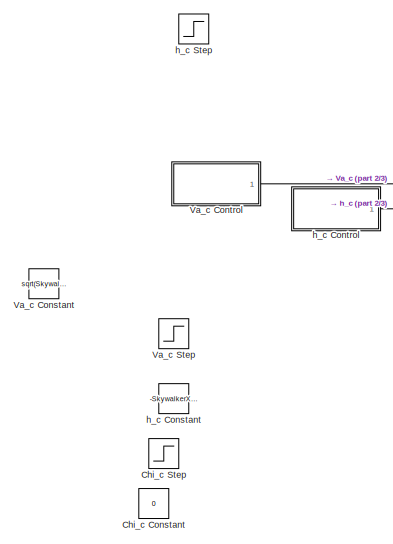
[diagram: root canvas - part 1/3, middle left region]
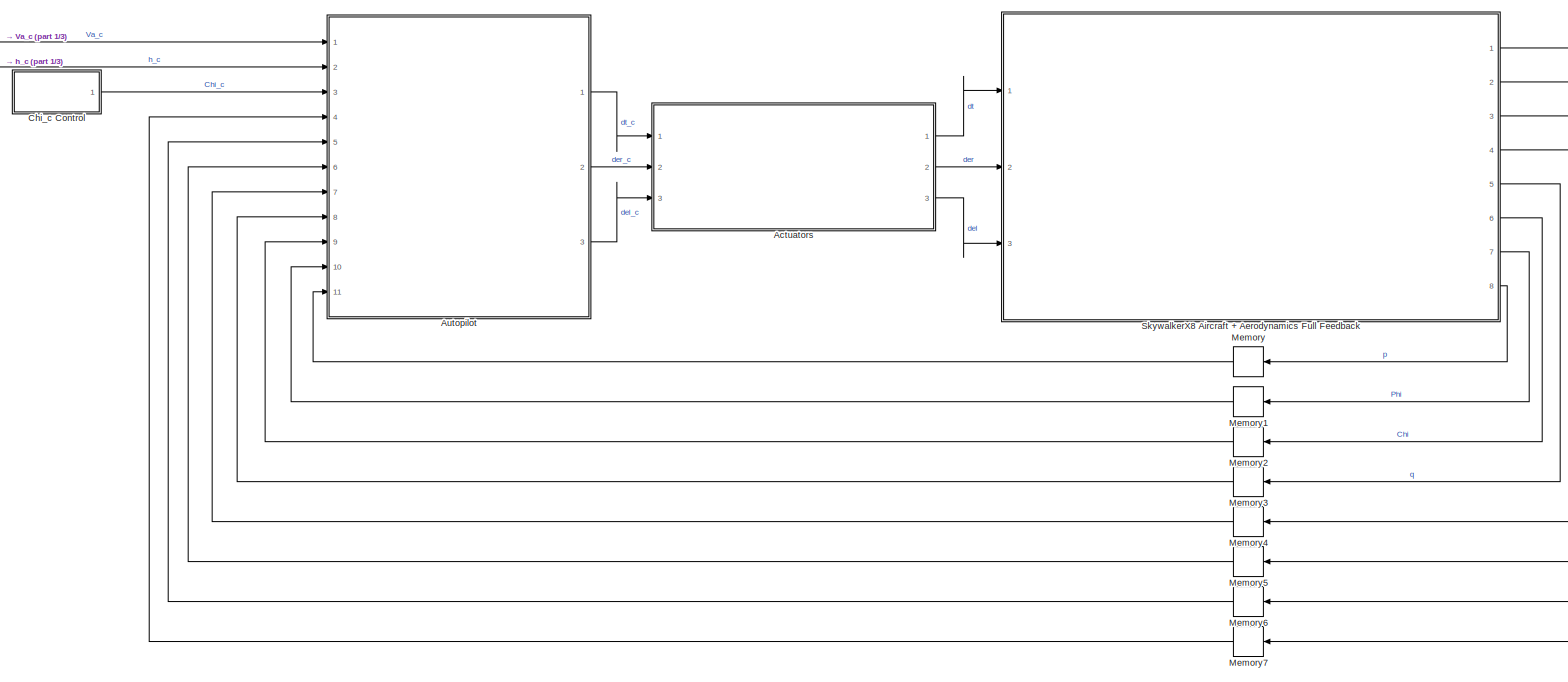
[diagram: root canvas - part 2/3, most of the canvas]
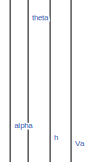
[diagram: root canvas - part 3/3, middle right region]
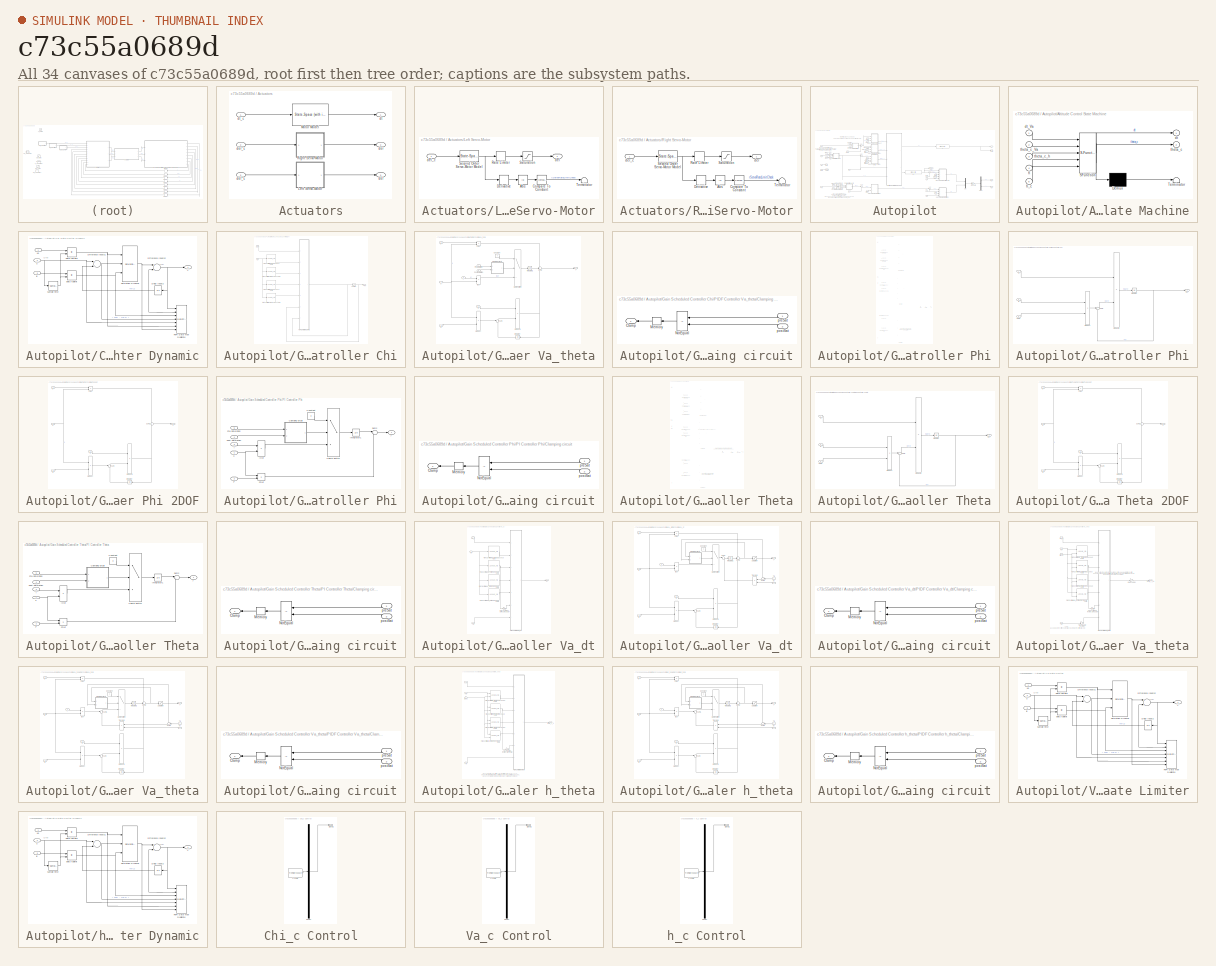
[diagram: thumbnail index - all 34 canvases of the model, root first then tree order]
MODEL slx_c73c55a0689d
KIND model
CONFIG AbsTol = auto
CONFIG EnableMultiTasking = off
CONFIG FixedStep = 0.01
CONFIG MaxStep = auto
CONFIG MinStep = auto
CONFIG RelTol = 1e-3
CONFIG SampleTimeConstraint = Unconstrained
CONFIG Solver = FixedStepAuto
CONFIG SolverName = FixedStepAuto
CONFIG StartTime = 0.0
CONFIG StopTime = 120
BLOCK [SubSystem] Actuators
  Ports = [3, 3]
  RequestExecContextInheritance = off
BLOCK [SubSystem] Actuators/Left Servo-Motor
  Ports = [1, 1]
  RequestExecContextInheritance = off
BLOCK [Abs] Actuators/Left Servo-Motor/Abs
  SaturateOnIntegerOverflow = off
BLOCK [Reference] Actuators/Left Servo-Motor/Compare To Constant  REF=simulink/Logic and Bit
Operations/Compare
To Constant
  Ports = [1, 1]
  SourceBlock = simulink/Logic and Bit\nOperations/Compare\nTo Constant
  SourceProductBaseCode = SL
  SourceProductName = Simulink
  SourceType = Compare To Constant
BLOCK [Derivative] Actuators/Left Servo-Motor/Derivative
BLOCK [RateLimiter] Actuators/Left Servo-Motor/Rate Limiter
  Commented = through
  FallingSlewLimit = -SkywalkerX8.Actuators.Servos.RateLimit
  InitialCondition = SkywalkerX8.InitialConditions.de*0.5 + SkywalkerX8.InitialConditions.da*0.5
  RisingSlewLimit = SkywalkerX8.Actuators.Servos.RateLimit
  SampleTimeMode = inherited
BLOCK [Saturate] Actuators/Left Servo-Motor/Saturation
  InputPortMap = u0
  LowerLimit = SkywalkerX8.Actuators.Servos.LowerSaturation
  Ports = [1, 1]
  UpperLimit = SkywalkerX8.Actuators.Servos.UpperSaturation
BLOCK [Reference] Actuators/Left Servo-Motor/Second Order Servo-Motor Model  REF=simulink_extras/Additional
Linear/State-Space
(with initial outputs)
  Ports = [1, 1]
  SourceBlock = simulink_extras/Additional\nLinear/State-Space\n(with initial outputs)
  SourceProductBaseCode = SL
  SourceProductName = Simulink
  SourceType = State-Space with Initial Outputs
BLOCK [Terminator] Actuators/Left Servo-Motor/Terminator
BLOCK [Outport] Actuators/Left Servo-Motor/del
  IconDisplay = Port number
BLOCK [Inport] Actuators/Left Servo-Motor/del_c
  IconDisplay = Port number
BLOCK [Reference] Actuators/Motor Model  REF=simulink_extras/Additional
Linear/State-Space
(with initial outputs)
  Ports = [1, 1]
  SourceBlock = simulink_extras/Additional\nLinear/State-Space\n(with initial outputs)
  SourceProductBaseCode = SL
  SourceProductName = Simulink
  SourceType = State-Space with Initial Outputs
BLOCK [SubSystem] Actuators/Right Servo-Motor
  Ports = [1, 1]
  RequestExecContextInheritance = off
BLOCK [Abs] Actuators/Right Servo-Motor/Abs
  SaturateOnIntegerOverflow = off
BLOCK [Reference] Actuators/Right Servo-Motor/Compare To Constant  REF=simulink/Logic and Bit
Operations/Compare
To Constant
  Ports = [1, 1]
  SourceBlock = simulink/Logic and Bit\nOperations/Compare\nTo Constant
  SourceProductBaseCode = SL
  SourceProductName = Simulink
  SourceType = Compare To Constant
BLOCK [Derivative] Actuators/Right Servo-Motor/Derivative
BLOCK [RateLimiter] Actuators/Right Servo-Motor/Rate Limiter
  Commented = through
  FallingSlewLimit = -SkywalkerX8.Actuators.Servos.RateLimit
  InitialCondition = SkywalkerX8.InitialConditions.de*0.5 - SkywalkerX8.InitialConditions.da*0.5
  RisingSlewLimit = SkywalkerX8.Actuators.Servos.RateLimit
  SampleTimeMode = inherited
BLOCK [Saturate] Actuators/Right Servo-Motor/Saturation
  InputPortMap = u0
  LowerLimit = SkywalkerX8.Actuators.Servos.LowerSaturation
  Ports = [1, 1]
  UpperLimit = SkywalkerX8.Actuators.Servos.UpperSaturation
BLOCK [Reference] Actuators/Right Servo-Motor/Second Order Servo-Motor Model  REF=simulink_extras/Additional
Linear/State-Space
(with initial outputs)
  Ports = [1, 1]
  SourceBlock = simulink_extras/Additional\nLinear/State-Space\n(with initial outputs)
  SourceProductBaseCode = SL
  SourceProductName = Simulink
  SourceType = State-Space with Initial Outputs
BLOCK [Terminator] Actuators/Right Servo-Motor/Terminator
BLOCK [Outport] Actuators/Right Servo-Motor/der
  IconDisplay = Port number
BLOCK [Inport] Actuators/Right Servo-Motor/der_c
  IconDisplay = Port number
BLOCK [Outport] Actuators/del
  IconDisplay = Port number
  Port = 3
BLOCK [Inport] Actuators/del_c
  IconDisplay = Port number
  Port = 3
BLOCK [Outport] Actuators/der
  IconDisplay = Port number
  Port = 2
BLOCK [Inport] Actuators/der_c
  IconDisplay = Port number
  Port = 2
BLOCK [Outport] Actuators/dt
  IconDisplay = Port number
BLOCK [Inport] Actuators/dt_c
  IconDisplay = Port number
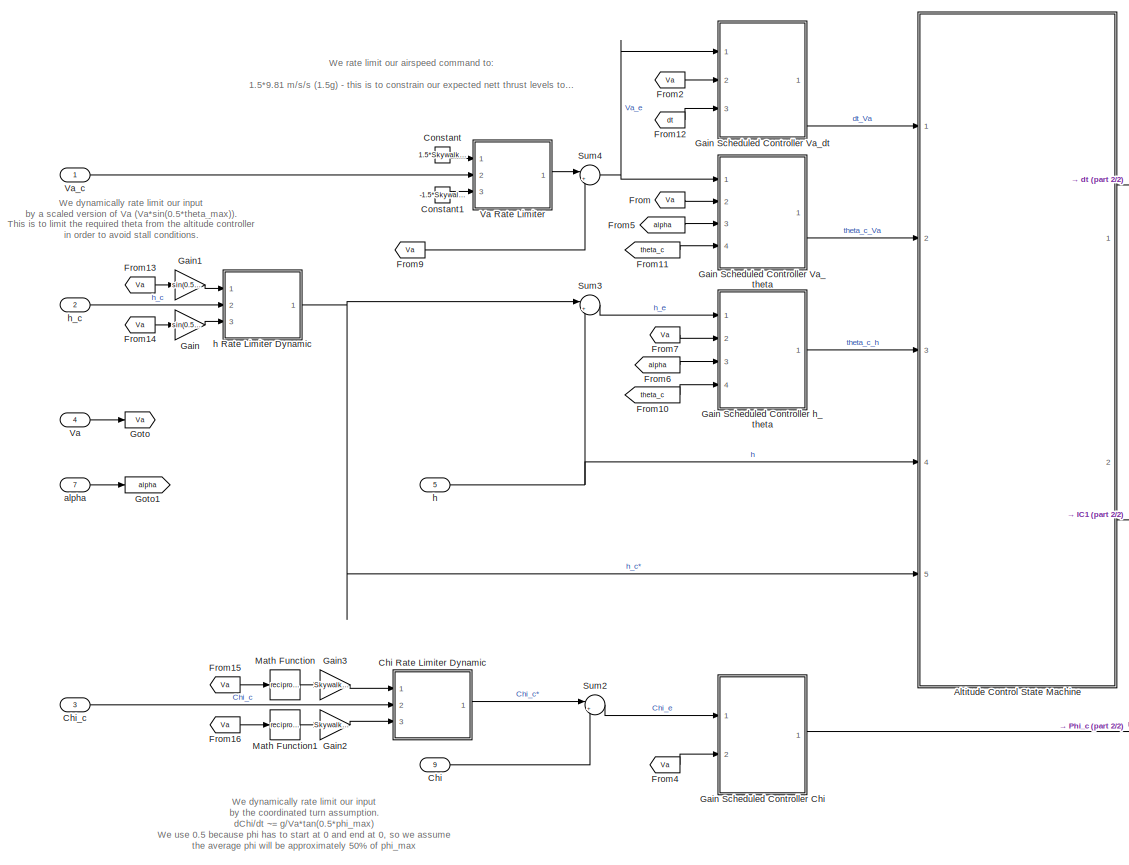
[diagram: Autopilot - part 1/2, left side, full height]
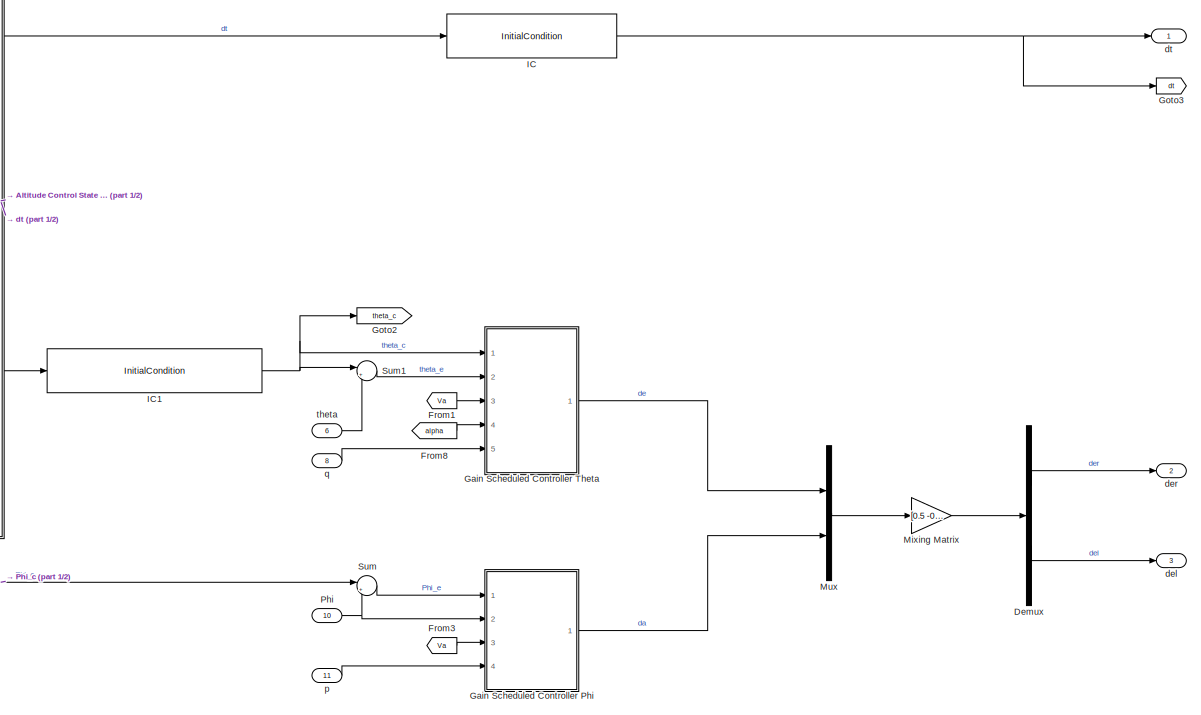
[diagram: Autopilot - part 2/2, right side, full height]
BLOCK [SubSystem] Autopilot
  Ports = [11, 3]
  RequestExecContextInheritance = off
BLOCK [SubSystem] Autopilot/Altitude Control State Machine
  ErrorFcn = Stateflow.Translate.translate
  PermitHierarchicalResolution = ExplicitOnly
  Ports = [5, 2]
  RequestExecContextInheritance = off
  SFBlockType = Chart
  TreatAsAtomicUnit = on
BLOCK [Demux] Autopilot/Altitude Control State Machine/ Demux 
  Outputs = 1
  Ports = [1, 1]
BLOCK [S-Function] Autopilot/Altitude Control State Machine/ SFunction 
  EnableBusSupport = on
  FunctionName = sf_sfun
  Parameters = PreFlightBypass,h_hold,h_takeoff,hyst_frac,theta_c_takeoff
  PortCounts = [5 3]
  Ports = [5, 3]
  SFcnIsStateOwnerBlock = off
  SFunctionDeploymentMode = off
  Tag = Stateflow S-Function SkywalkerX8_Control 3
BLOCK [Terminator] Autopilot/Altitude Control State Machine/ Terminator 
BLOCK [Outport] Autopilot/Altitude Control State Machine/dt
  IconDisplay = Port number
BLOCK [Inport] Autopilot/Altitude Control State Machine/dt_Va
  IconDisplay = Port number
BLOCK [Inport] Autopilot/Altitude Control State Machine/h
  IconDisplay = Port number
  Port = 4
BLOCK [Inport] Autopilot/Altitude Control State Machine/h_c
  IconDisplay = Port number
  Port = 5
BLOCK [Outport] Autopilot/Altitude Control State Machine/theta_c
  IconDisplay = Port number
  Port = 2
BLOCK [Inport] Autopilot/Altitude Control State Machine/theta_c_Va
  IconDisplay = Port number
  Port = 2
BLOCK [Inport] Autopilot/Altitude Control State Machine/theta_c_h
  IconDisplay = Port number
  Port = 3
BLOCK [Inport] Autopilot/Chi
  IconDisplay = Port number
  Port = 9
BLOCK [SubSystem] Autopilot/Chi Rate Limiter Dynamic
  Ports = [3, 1]
  RequestExecContextInheritance = off
BLOCK [UnitDelay] Autopilot/Chi Rate Limiter Dynamic/Delay Input2
  Description = Store in Global RAM
  DisableCoverage = on
  InitialCondition = initOutput
  SampleTime = -1
BLOCK [Sum] Autopilot/Chi Rate Limiter Dynamic/Difference Inputs1
  Description = Add in CPU
  DisableCoverage = on
  InputSameDT = off
  Inputs = +-
  OutDataTypeStr = Inherit: Inherit via back propagation
  Ports = [2, 1]
  SaturateOnIntegerOverflow = off
BLOCK [Sum] Autopilot/Chi Rate Limiter Dynamic/Difference Inputs2
  Description = Add in CPU
  InputSameDT = off
  OutDataTypeStr = Inherit: Inherit via back propagation
  Ports = [2, 1]
  SaturateOnIntegerOverflow = off
BLOCK [DataTypeDuplicate] Autopilot/Chi Rate Limiter Dynamic/FixPt Data Type Duplicate
  DisableCoverage = on
  NumInputPorts = 7
  Ports = [7]
BLOCK [Reference] Autopilot/Chi Rate Limiter Dynamic/Saturation Dynamic  REF=simulink/Discontinuities/Saturation
Dynamic
  Ports = [3, 1]
  SourceBlock = simulink/Discontinuities/Saturation\nDynamic
  SourceProductBaseCode = SL
  SourceProductName = Simulink
  SourceType = Saturation Dynamic
BLOCK [Outport] Autopilot/Chi Rate Limiter Dynamic/Y
  IconDisplay = Port number
  InitialOutput = 0
BLOCK [Product] Autopilot/Chi Rate Limiter Dynamic/delta fall limit
  DisableCoverage = on
  InputSameDT = off
  Inputs = **
  OutDataTypeStr = Inherit: Inherit via back propagation
  Ports = [2, 1]
  RndMeth = Floor
BLOCK [Product] Autopilot/Chi Rate Limiter Dynamic/delta rise limit
  DisableCoverage = on
  InputSameDT = off
  Inputs = **
  OutDataTypeStr = Inherit: Inherit via back propagation
  Ports = [2, 1]
  RndMeth = Floor
BLOCK [Inport] Autopilot/Chi Rate Limiter Dynamic/lo
  IconDisplay = Port number
  Port = 3
BLOCK [SampleTimeMath] Autopilot/Chi Rate Limiter Dynamic/sample time
  DisableCoverage = on
  TsampMathOp = Ts Only
  weightValue = 1
BLOCK [Inport] Autopilot/Chi Rate Limiter Dynamic/u
  IconDisplay = Port number
  Port = 2
BLOCK [Inport] Autopilot/Chi Rate Limiter Dynamic/up
  IconDisplay = Port number
BLOCK [Inport] Autopilot/Chi_c
  IconDisplay = Port number
  Port = 3
BLOCK [Constant] Autopilot/Constant
  Value = 1.5*SkywalkerX8.System.Gravity
BLOCK [Constant] Autopilot/Constant1
  Value = -1.5*SkywalkerX8.System.Gravity
BLOCK [Demux] Autopilot/Demux
  DisplayOption = bar
  Outputs = 2
  Ports = [1, 2]
BLOCK [From] Autopilot/From
  GotoTag = Va
BLOCK [From] Autopilot/From1
  GotoTag = Va
BLOCK [From] Autopilot/From10
  GotoTag = theta_c
BLOCK [From] Autopilot/From11
  GotoTag = theta_c
BLOCK [From] Autopilot/From12
  GotoTag = dt
BLOCK [From] Autopilot/From13
  GotoTag = Va
BLOCK [From] Autopilot/From14
  GotoTag = Va
BLOCK [From] Autopilot/From15
  GotoTag = Va
BLOCK [From] Autopilot/From16
  GotoTag = Va
BLOCK [From] Autopilot/From2
  GotoTag = Va
BLOCK [From] Autopilot/From3
  GotoTag = Va
BLOCK [From] Autopilot/From4
  GotoTag = Va
BLOCK [From] Autopilot/From5
  GotoTag = alpha
BLOCK [From] Autopilot/From6
  GotoTag = alpha
BLOCK [From] Autopilot/From7
  GotoTag = Va
BLOCK [From] Autopilot/From8
  GotoTag = alpha
BLOCK [From] Autopilot/From9
  GotoTag = Va
BLOCK [Gain] Autopilot/Gain
  Gain = sin(0.5*SkywalkerX8.Control.Longitudinal.altController.lowerSaturationThetaC)
  OutDataTypeStr = Inherit: Inherit via internal rule
  ParamDataTypeStr = Inherit: Inherit via internal rule
  SaturateOnIntegerOverflow = off
BLOCK [SubSystem] Autopilot/Gain Scheduled Controller Chi
  Ports = [2, 1]
  RequestExecContextInheritance = off
BLOCK [Inport] Autopilot/Gain Scheduled Controller Chi/Chi_e
  IconDisplay = Port number
BLOCK [Lookup_n-D] Autopilot/Gain Scheduled Controller Chi/PIDF Controller Chi Kd 2D Lookup Table
  BreakpointsForDimension1 = SkywalkerX8.Control.Lateral.SchedulingVariables.VaArray
  BreakpointsForDimension2 = SkywalkerX8.Control.Longitudinal.SchedulingVariables.alphaArray
  InternalRulePriority = Speed
  NumberOfTableDimensions = 1
  Ports = [1, 1]
  RndMeth = Simplest
  Table = SkywalkerX8.Control.Lateral.ChiController.KdChi
BLOCK [Lookup_n-D] Autopilot/Gain Scheduled Controller Chi/PIDF Controller Chi Ki 2D Lookup Table
  BreakpointsForDimension1 = SkywalkerX8.Control.Lateral.SchedulingVariables.VaArray
  BreakpointsForDimension2 = SkywalkerX8.Control.Longitudinal.SchedulingVariables.alphaArray
  InternalRulePriority = Speed
  NumberOfTableDimensions = 1
  Ports = [1, 1]
  RndMeth = Simplest
  Table = SkywalkerX8.Control.Lateral.ChiController.KiChi
BLOCK [Lookup_n-D] Autopilot/Gain Scheduled Controller Chi/PIDF Controller Chi Kp 2D Lookup Table
  BreakpointsForDimension1 = SkywalkerX8.Control.Lateral.SchedulingVariables.VaArray
  BreakpointsForDimension2 = SkywalkerX8.Control.Longitudinal.SchedulingVariables.alphaArray
  InternalRulePriority = Speed
  NumberOfTableDimensions = 1
  Ports = [1, 1]
  RndMeth = Simplest
  Table = SkywalkerX8.Control.Lateral.ChiController.KpChi
BLOCK [Lookup_n-D] Autopilot/Gain Scheduled Controller Chi/PIDF Controller Chi N 2D Lookup Table
  BreakpointsForDimension1 = SkywalkerX8.Control.Lateral.SchedulingVariables.VaArray
  BreakpointsForDimension2 = SkywalkerX8.Control.Longitudinal.SchedulingVariables.alphaArray
  InternalRulePriority = Speed
  NumberOfTableDimensions = 1
  Ports = [1, 1]
  RndMeth = Simplest
  Table = SkywalkerX8.Control.Lateral.ChiController.NChi
BLOCK [SubSystem] Autopilot/Gain Scheduled Controller Chi/PIDF Controller Va_theta
  Ports = [7, 1]
  RequestExecContextInheritance = off
BLOCK [Switch] Autopilot/Gain Scheduled Controller Chi/PIDF Controller Va_theta/Clamp Switch
  Criteria = u2 ~= 0
  InputSameDT = off
  SaturateOnIntegerOverflow = off
BLOCK [SubSystem] Autopilot/Gain Scheduled Controller Chi/PIDF Controller Va_theta/Clamping circuit
  Ports = [2, 1]
  RequestExecContextInheritance = off
BLOCK [Outport] Autopilot/Gain Scheduled Controller Chi/PIDF Controller Va_theta/Clamping circuit/Clamp
  DisableCoverage = on
  IconDisplay = Port number
BLOCK [Memory] Autopilot/Gain Scheduled Controller Chi/PIDF Controller Va_theta/Clamping circuit/Memory
  DisableCoverage = on
BLOCK [RelationalOperator] Autopilot/Gain Scheduled Controller Chi/PIDF Controller Va_theta/Clamping circuit/NotEqual
  DisableCoverage = on
  Operator = ~=
  Ports = [2, 1]
BLOCK [Inport] Autopilot/Gain Scheduled Controller Chi/PIDF Controller Va_theta/Clamping circuit/postSat
  DisableCoverage = on
  IconDisplay = Port number
  Port = 2
BLOCK [Inport] Autopilot/Gain Scheduled Controller Chi/PIDF Controller Va_theta/Clamping circuit/preSat
  DisableCoverage = on
  IconDisplay = Port number
BLOCK [Constant] Autopilot/Gain Scheduled Controller Chi/PIDF Controller Va_theta/Constant
  Value = 0
BLOCK [Inport] Autopilot/Gain Scheduled Controller Chi/PIDF Controller Va_theta/D
  IconDisplay = Port number
  Port = 4
BLOCK [Inport] Autopilot/Gain Scheduled Controller Chi/PIDF Controller Va_theta/I
  IconDisplay = Port number
  Port = 3
BLOCK [Product] Autopilot/Gain Scheduled Controller Chi/PIDF Controller Va_theta/IOut
  DisableCoverage = on
  InputSameDT = off
  OutDataTypeStr = Inherit: Inherit via internal rule
  Ports = [2, 1]
  RndMeth = Floor
  SaturateOnIntegerOverflow = off
BLOCK [Integrator] Autopilot/Gain Scheduled Controller Chi/PIDF Controller Va_theta/Integrator
  Ports = [1, 1]
BLOCK [Integrator] Autopilot/Gain Scheduled Controller Chi/PIDF Controller Va_theta/Integrator1
  IgnoreLimit = on
  Ports = [1, 1]
BLOCK [Inport] Autopilot/Gain Scheduled Controller Chi/PIDF Controller Va_theta/N
  IconDisplay = Port number
  Port = 5
BLOCK [Inport] Autopilot/Gain Scheduled Controller Chi/PIDF Controller Va_theta/P
  IconDisplay = Port number
  Port = 2
BLOCK [Product] Autopilot/Gain Scheduled Controller Chi/PIDF Controller Va_theta/POut
  InputSameDT = off
  OutDataTypeStr = Inherit: Inherit via internal rule
  Ports = [2, 1]
  RndMeth = Floor
  SaturateOnIntegerOverflow = off
BLOCK [Inport] Autopilot/Gain Scheduled Controller Chi/PIDF Controller Va_theta/Post-Saturation
  IconDisplay = Port number
  Port = 6
BLOCK [Inport] Autopilot/Gain Scheduled Controller Chi/PIDF Controller Va_theta/Pre-Saturation
  IconDisplay = Port number
  Port = 7
BLOCK [Product] Autopilot/Gain Scheduled Controller Chi/PIDF Controller Va_theta/Product
  InputSameDT = off
  OutDataTypeStr = Inherit: Inherit via internal rule
  Ports = [2, 1]
  RndMeth = Floor
  SaturateOnIntegerOverflow = off
BLOCK [Product] Autopilot/Gain Scheduled Controller Chi/PIDF Controller Va_theta/Product1
  InputSameDT = off
  OutDataTypeStr = Inherit: Inherit via internal rule
  Ports = [2, 1]
  RndMeth = Floor
  SaturateOnIntegerOverflow = off
BLOCK [Sum] Autopilot/Gain Scheduled Controller Chi/PIDF Controller Va_theta/Sum
  IconShape = round
  InputSameDT = off
  Inputs = |+-
  OutDataTypeStr = Inherit: Inherit via internal rule
  Ports = [2, 1]
  SaturateOnIntegerOverflow = off
BLOCK [Sum] Autopilot/Gain Scheduled Controller Chi/PIDF Controller Va_theta/Sum2
  IconShape = round
  InputSameDT = off
  Inputs = +++
  OutDataTypeStr = Inherit: Inherit via internal rule
  Ports = [3, 1]
  SaturateOnIntegerOverflow = off
BLOCK [Inport] Autopilot/Gain Scheduled Controller Chi/PIDF Controller Va_theta/u
  IconDisplay = Port number
BLOCK [Outport] Autopilot/Gain Scheduled Controller Chi/PIDF Controller Va_theta/y
  IconDisplay = Port number
  InitialOutput = 0
BLOCK [Outport] Autopilot/Gain Scheduled Controller Chi/Phi_c
  IconDisplay = Port number
BLOCK [Saturate] Autopilot/Gain Scheduled Controller Chi/Saturation
  InputPortMap = u0
  LowerLimit = SkywalkerX8.Control.Lateral.ChiController.lowerSaturationPhiC
  Ports = [1, 1]
  UpperLimit = SkywalkerX8.Control.Lateral.ChiController.upperSaturationPhiC
BLOCK [Inport] Autopilot/Gain Scheduled Controller Chi/Va
  IconDisplay = Port number
  Port = 2
BLOCK [SubSystem] Autopilot/Gain Scheduled Controller Phi
  Ports = [4, 1]
  RequestExecContextInheritance = off
BLOCK [SubSystem] Autopilot/Gain Scheduled Controller Phi/DF Controller Phi
  Ports = [3, 1]
  RequestExecContextInheritance = off
BLOCK [Inport] Autopilot/Gain Scheduled Controller Phi/DF Controller Phi/D
  IconDisplay = Port number
  Port = 2
BLOCK [Integrator] Autopilot/Gain Scheduled Controller Phi/DF Controller Phi/Integrator
  Ports = [1, 1]
BLOCK [Inport] Autopilot/Gain Scheduled Controller Phi/DF Controller Phi/N
  IconDisplay = Port number
BLOCK [Product] Autopilot/Gain Scheduled Controller Phi/DF Controller Phi/Product
  InputSameDT = off
  OutDataTypeStr = Inherit: Inherit via internal rule
  Ports = [2, 1]
  RndMeth = Floor
  SaturateOnIntegerOverflow = off
BLOCK [Product] Autopilot/Gain Scheduled Controller Phi/DF Controller Phi/Product1
  InputSameDT = off
  OutDataTypeStr = Inherit: Inherit via internal rule
  Ports = [2, 1]
  RndMeth = Floor
  SaturateOnIntegerOverflow = off
BLOCK [Sum] Autopilot/Gain Scheduled Controller Phi/DF Controller Phi/Sum
  IconShape = round
  InputSameDT = off
  Inputs = |+-
  OutDataTypeStr = Inherit: Inherit via internal rule
  Ports = [2, 1]
  SaturateOnIntegerOverflow = off
BLOCK [Outport] Autopilot/Gain Scheduled Controller Phi/DF Controller Phi/da*
  IconDisplay = Port number
BLOCK [Inport] Autopilot/Gain Scheduled Controller Phi/DF Controller Phi/du//dt
  IconDisplay = Port number
  Port = 3
BLOCK [SubSystem] Autopilot/Gain Scheduled Controller Phi/PDF Controller Phi 2DOF
  Ports = [4, 1]
  RequestExecContextInheritance = off
BLOCK [Lookup_n-D] Autopilot/Gain Scheduled Controller Phi/PDF Controller Phi 2DOF Kd 2D Lookup Table
  BreakpointsForDimension1 = SkywalkerX8.Control.Lateral.SchedulingVariables.VaArray
  BreakpointsForDimension2 = SkywalkerX8.Control.Longitudinal.SchedulingVariables.alphaArray
  InternalRulePriority = Speed
  NumberOfTableDimensions = 1
  Ports = [1, 1]
  RndMeth = Simplest
  Table = SkywalkerX8.Control.Lateral.PhiController.KdPhi2DOF
BLOCK [Lookup_n-D] Autopilot/Gain Scheduled Controller Phi/PDF Controller Phi 2DOF Kp 2D Lookup Table
  BreakpointsForDimension1 = SkywalkerX8.Control.Lateral.SchedulingVariables.VaArray
  BreakpointsForDimension2 = SkywalkerX8.Control.Longitudinal.SchedulingVariables.alphaArray
  InternalRulePriority = Speed
  NumberOfTableDimensions = 1
  Ports = [1, 1]
  RndMeth = Simplest
  Table = SkywalkerX8.Control.Lateral.PhiController.KpPhi2DOF
BLOCK [Lookup_n-D] Autopilot/Gain Scheduled Controller Phi/PDF Controller Phi 2DOF N 2D Lookup Table
  BreakpointsForDimension1 = SkywalkerX8.Control.Lateral.SchedulingVariables.VaArray
  BreakpointsForDimension2 = SkywalkerX8.Control.Longitudinal.SchedulingVariables.alphaArray
  InternalRulePriority = Speed
  NumberOfTableDimensions = 1
  Ports = [1, 1]
  RndMeth = Simplest
  Table = SkywalkerX8.Control.Lateral.PhiController.NPhi2DOF
BLOCK [Inport] Autopilot/Gain Scheduled Controller Phi/PDF Controller Phi 2DOF/D
  IconDisplay = Port number
  Port = 3
BLOCK [Integrator] Autopilot/Gain Scheduled Controller Phi/PDF Controller Phi 2DOF/Integrator
  Ports = [1, 1]
BLOCK [Inport] Autopilot/Gain Scheduled Controller Phi/PDF Controller Phi 2DOF/N
  IconDisplay = Port number
  Port = 4
BLOCK [Inport] Autopilot/Gain Scheduled Controller Phi/PDF Controller Phi 2DOF/P
  IconDisplay = Port number
  Port = 2
BLOCK [Product] Autopilot/Gain Scheduled Controller Phi/PDF Controller Phi 2DOF/POut
  InputSameDT = off
  OutDataTypeStr = Inherit: Inherit via internal rule
  Ports = [2, 1]
  RndMeth = Floor
  SaturateOnIntegerOverflow = off
BLOCK [Product] Autopilot/Gain Scheduled Controller Phi/PDF Controller Phi 2DOF/Product
  InputSameDT = off
  OutDataTypeStr = Inherit: Inherit via internal rule
  Ports = [2, 1]
  RndMeth = Floor
  SaturateOnIntegerOverflow = off
BLOCK [Product] Autopilot/Gain Scheduled Controller Phi/PDF Controller Phi 2DOF/Product1
  InputSameDT = off
  OutDataTypeStr = Inherit: Inherit via internal rule
  Ports = [2, 1]
  RndMeth = Floor
  SaturateOnIntegerOverflow = off
BLOCK [Sum] Autopilot/Gain Scheduled Controller Phi/PDF Controller Phi 2DOF/Sum
  IconShape = round
  InputSameDT = off
  Inputs = |+-
  OutDataTypeStr = Inherit: Inherit via internal rule
  Ports = [2, 1]
  SaturateOnIntegerOverflow = off
BLOCK [Sum] Autopilot/Gain Scheduled Controller Phi/PDF Controller Phi 2DOF/Sum2
  IconShape = round
  InputSameDT = off
  OutDataTypeStr = Inherit: Inherit via internal rule
  Ports = [2, 1]
  SaturateOnIntegerOverflow = off
BLOCK [Inport] Autopilot/Gain Scheduled Controller Phi/PDF Controller Phi 2DOF/u
  IconDisplay = Port number
BLOCK [Outport] Autopilot/Gain Scheduled Controller Phi/PDF Controller Phi 2DOF/y
  IconDisplay = Port number
  InitialOutput = 0
BLOCK [SubSystem] Autopilot/Gain Scheduled Controller Phi/PI Controller Phi
  Ports = [5, 1]
  RequestExecContextInheritance = off
BLOCK [Switch] Autopilot/Gain Scheduled Controller Phi/PI Controller Phi/Clamp Switch
  Criteria = u2 ~= 0
  InputSameDT = off
  SaturateOnIntegerOverflow = off
BLOCK [SubSystem] Autopilot/Gain Scheduled Controller Phi/PI Controller Phi/Clamping circuit
  Ports = [2, 1]
  RequestExecContextInheritance = off
BLOCK [Outport] Autopilot/Gain Scheduled Controller Phi/PI Controller Phi/Clamping circuit/Clamp
  DisableCoverage = on
  IconDisplay = Port number
BLOCK [Memory] Autopilot/Gain Scheduled Controller Phi/PI Controller Phi/Clamping circuit/Memory
  DisableCoverage = on
BLOCK [RelationalOperator] Autopilot/Gain Scheduled Controller Phi/PI Controller Phi/Clamping circuit/NotEqual
  DisableCoverage = on
  Operator = ~=
  Ports = [2, 1]
BLOCK [Inport] Autopilot/Gain Scheduled Controller Phi/PI Controller Phi/Clamping circuit/postSat
  DisableCoverage = on
  IconDisplay = Port number
  Port = 2
BLOCK [Inport] Autopilot/Gain Scheduled Controller Phi/PI Controller Phi/Clamping circuit/preSat
  DisableCoverage = on
  IconDisplay = Port number
BLOCK [Constant] Autopilot/Gain Scheduled Controller Phi/PI Controller Phi/Constant
  Value = 0
BLOCK [Inport] Autopilot/Gain Scheduled Controller Phi/PI Controller Phi/I
  IconDisplay = Port number
  Port = 3
BLOCK [Product] Autopilot/Gain Scheduled Controller Phi/PI Controller Phi/IOut
  DisableCoverage = on
  InputSameDT = off
  OutDataTypeStr = Inherit: Inherit via internal rule
  Ports = [2, 1]
  RndMeth = Floor
  SaturateOnIntegerOverflow = off
BLOCK [Integrator] Autopilot/Gain Scheduled Controller Phi/PI Controller Phi/Integrator1
  IgnoreLimit = on
  InitialCondition = SkywalkerX8.InitialConditions.da
  Ports = [1, 1]
BLOCK [Inport] Autopilot/Gain Scheduled Controller Phi/PI Controller Phi/P
  IconDisplay = Port number
  Port = 2
BLOCK [Product] Autopilot/Gain Scheduled Controller Phi/PI Controller Phi/POut
  InputSameDT = off
  OutDataTypeStr = Inherit: Inherit via internal rule
  Ports = [2, 1]
  RndMeth = Floor
  SaturateOnIntegerOverflow = off
BLOCK [Inport] Autopilot/Gain Scheduled Controller Phi/PI Controller Phi/Post-Saturation
  IconDisplay = Port number
  Port = 4
BLOCK [Inport] Autopilot/Gain Scheduled Controller Phi/PI Controller Phi/Pre-Saturation
  IconDisplay = Port number
  Port = 5
BLOCK [Sum] Autopilot/Gain Scheduled Controller Phi/PI Controller Phi/Sum2
  IconShape = round
  InputSameDT = off
  Inputs = |++
  OutDataTypeStr = Inherit: Inherit via internal rule
  Ports = [2, 1]
  SaturateOnIntegerOverflow = off
BLOCK [Inport] Autopilot/Gain Scheduled Controller Phi/PI Controller Phi/u
  IconDisplay = Port number
BLOCK [Outport] Autopilot/Gain Scheduled Controller Phi/PI Controller Phi/y
  IconDisplay = Port number
  InitialOutput = 0
BLOCK [Lookup_n-D] Autopilot/Gain Scheduled Controller Phi/PIDF Controller Phi Kd 2D Lookup Table
  BreakpointsForDimension1 = SkywalkerX8.Control.Lateral.SchedulingVariables.VaArray
  BreakpointsForDimension2 = SkywalkerX8.Control.Longitudinal.SchedulingVariables.alphaArray
  InternalRulePriority = Speed
  NumberOfTableDimensions = 1
  Ports = [1, 1]
  RndMeth = Simplest
  Table = SkywalkerX8.Control.Lateral.PhiController.KdPhi
BLOCK [Lookup_n-D] Autopilot/Gain Scheduled Controller Phi/PIDF Controller Phi Ki 2D Lookup Table
  BreakpointsForDimension1 = SkywalkerX8.Control.Lateral.SchedulingVariables.VaArray
  BreakpointsForDimension2 = SkywalkerX8.Control.Longitudinal.SchedulingVariables.alphaArray
  InternalRulePriority = Speed
  NumberOfTableDimensions = 1
  Ports = [1, 1]
  RndMeth = Simplest
  Table = SkywalkerX8.Control.Lateral.PhiController.KiPhi
BLOCK [Lookup_n-D] Autopilot/Gain Scheduled Controller Phi/PIDF Controller Phi Kp 2D Lookup Table
  BreakpointsForDimension1 = SkywalkerX8.Control.Lateral.SchedulingVariables.VaArray
  BreakpointsForDimension2 = SkywalkerX8.Control.Longitudinal.SchedulingVariables.alphaArray
  InternalRulePriority = Speed
  NumberOfTableDimensions = 1
  Ports = [1, 1]
  RndMeth = Simplest
  Table = SkywalkerX8.Control.Lateral.PhiController.KpPhi
BLOCK [Lookup_n-D] Autopilot/Gain Scheduled Controller Phi/PIDF Controller Phi N 2D Lookup Table
  BreakpointsForDimension1 = SkywalkerX8.Control.Lateral.SchedulingVariables.VaArray
  BreakpointsForDimension2 = SkywalkerX8.Control.Longitudinal.SchedulingVariables.alphaArray
  InternalRulePriority = Speed
  NumberOfTableDimensions = 1
  Ports = [1, 1]
  RndMeth = Simplest
  Table = SkywalkerX8.Control.Lateral.PhiController.NPhi
BLOCK [Inport] Autopilot/Gain Scheduled Controller Phi/Phi
  IconDisplay = Port number
  Port = 2
BLOCK [Inport] Autopilot/Gain Scheduled Controller Phi/Phi_e
  IconDisplay = Port number
BLOCK [Saturate] Autopilot/Gain Scheduled Controller Phi/Saturation
  InputPortMap = u0
  LowerLimit = SkywalkerX8.Control.Lateral.PhiController.lowerSaturationDa
  Ports = [1, 1]
  UpperLimit = SkywalkerX8.Control.Lateral.PhiController.upperSaturationDa
BLOCK [Sum] Autopilot/Gain Scheduled Controller Phi/Sum1
  IconShape = round
  InputSameDT = off
  Inputs = +++|
  OutDataTypeStr = Inherit: Inherit via internal rule
  Ports = [3, 1]
  SaturateOnIntegerOverflow = off
BLOCK [Inport] Autopilot/Gain Scheduled Controller Phi/Va
  IconDisplay = Port number
  Port = 3
BLOCK [Outport] Autopilot/Gain Scheduled Controller Phi/da
  IconDisplay = Port number
BLOCK [Inport] Autopilot/Gain Scheduled Controller Phi/p
  IconDisplay = Port number
  Port = 4
BLOCK [SubSystem] Autopilot/Gain Scheduled Controller Theta
  Ports = [5, 1]
  RequestExecContextInheritance = off
BLOCK [SubSystem] Autopilot/Gain Scheduled Controller Theta/DF Controller Theta
  Ports = [3, 1]
  RequestExecContextInheritance = off
BLOCK [Inport] Autopilot/Gain Scheduled Controller Theta/DF Controller Theta/D
  IconDisplay = Port number
  Port = 2
BLOCK [Integrator] Autopilot/Gain Scheduled Controller Theta/DF Controller Theta/Integrator
  Ports = [1, 1]
BLOCK [Inport] Autopilot/Gain Scheduled Controller Theta/DF Controller Theta/N
  IconDisplay = Port number
BLOCK [Product] Autopilot/Gain Scheduled Controller Theta/DF Controller Theta/Product
  InputSameDT = off
  OutDataTypeStr = Inherit: Inherit via internal rule
  Ports = [2, 1]
  RndMeth = Floor
  SaturateOnIntegerOverflow = off
BLOCK [Product] Autopilot/Gain Scheduled Controller Theta/DF Controller Theta/Product1
  InputSameDT = off
  OutDataTypeStr = Inherit: Inherit via internal rule
  Ports = [2, 1]
  RndMeth = Floor
  SaturateOnIntegerOverflow = off
BLOCK [Sum] Autopilot/Gain Scheduled Controller Theta/DF Controller Theta/Sum
  IconShape = round
  InputSameDT = off
  Inputs = |+-
  OutDataTypeStr = Inherit: Inherit via internal rule
  Ports = [2, 1]
  SaturateOnIntegerOverflow = off
BLOCK [Outport] Autopilot/Gain Scheduled Controller Theta/DF Controller Theta/de*
  IconDisplay = Port number
BLOCK [Inport] Autopilot/Gain Scheduled Controller Theta/DF Controller Theta/du//dt
  IconDisplay = Port number
  Port = 3
BLOCK [SubSystem] Autopilot/Gain Scheduled Controller Theta/PDF Controller Theta 2DOF
  Ports = [4, 1]
  RequestExecContextInheritance = off
BLOCK [Inport] Autopilot/Gain Scheduled Controller Theta/PDF Controller Theta 2DOF/D
  IconDisplay = Port number
  Port = 3
BLOCK [Integrator] Autopilot/Gain Scheduled Controller Theta/PDF Controller Theta 2DOF/Integrator
  InitialCondition = SkywalkerX8.InitialConditions.ThetaController.RefController.Derivative
  Ports = [1, 1]
BLOCK [Inport] Autopilot/Gain Scheduled Controller Theta/PDF Controller Theta 2DOF/N
  IconDisplay = Port number
  Port = 4
BLOCK [Inport] Autopilot/Gain Scheduled Controller Theta/PDF Controller Theta 2DOF/P
  IconDisplay = Port number
  Port = 2
BLOCK [Product] Autopilot/Gain Scheduled Controller Theta/PDF Controller Theta 2DOF/POut
  InputSameDT = off
  OutDataTypeStr = Inherit: Inherit via internal rule
  Ports = [2, 1]
  RndMeth = Floor
  SaturateOnIntegerOverflow = off
BLOCK [Product] Autopilot/Gain Scheduled Controller Theta/PDF Controller Theta 2DOF/Product
  InputSameDT = off
  OutDataTypeStr = Inherit: Inherit via internal rule
  Ports = [2, 1]
  RndMeth = Floor
  SaturateOnIntegerOverflow = off
BLOCK [Product] Autopilot/Gain Scheduled Controller Theta/PDF Controller Theta 2DOF/Product1
  InputSameDT = off
  OutDataTypeStr = Inherit: Inherit via internal rule
  Ports = [2, 1]
  RndMeth = Floor
  SaturateOnIntegerOverflow = off
BLOCK [Sum] Autopilot/Gain Scheduled Controller Theta/PDF Controller Theta 2DOF/Sum
  IconShape = round
  InputSameDT = off
  Inputs = |+-
  OutDataTypeStr = Inherit: Inherit via internal rule
  Ports = [2, 1]
  SaturateOnIntegerOverflow = off
BLOCK [Sum] Autopilot/Gain Scheduled Controller Theta/PDF Controller Theta 2DOF/Sum2
  IconShape = round
  InputSameDT = off
  OutDataTypeStr = Inherit: Inherit via internal rule
  Ports = [2, 1]
  SaturateOnIntegerOverflow = off
BLOCK [Inport] Autopilot/Gain Scheduled Controller Theta/PDF Controller Theta 2DOF/u
  IconDisplay = Port number
BLOCK [Outport] Autopilot/Gain Scheduled Controller Theta/PDF Controller Theta 2DOF/y
  IconDisplay = Port number
  InitialOutput = 0
BLOCK [Lookup_n-D] Autopilot/Gain Scheduled Controller Theta/PDF Controller theta 2DOF Kd 2D Lookup Table
  BreakpointsForDimension1 = SkywalkerX8.Control.Longitudinal.SchedulingVariables.VaArray
  BreakpointsForDimension2 = SkywalkerX8.Control.Longitudinal.SchedulingVariables.alphaArray
  InternalRulePriority = Speed
  Ports = [2, 1]
  RndMeth = Simplest
  Table = SkywalkerX8.Control.Longitudinal.thetaController.KdTheta2DOF
BLOCK [Lookup_n-D] Autopilot/Gain Scheduled Controller Theta/PDF Controller theta 2DOF Kp 2D Lookup Table
  BreakpointsForDimension1 = SkywalkerX8.Control.Longitudinal.SchedulingVariables.VaArray
  BreakpointsForDimension2 = SkywalkerX8.Control.Longitudinal.SchedulingVariables.alphaArray
  InternalRulePriority = Speed
  Ports = [2, 1]
  RndMeth = Simplest
  Table = SkywalkerX8.Control.Longitudinal.thetaController.KpTheta2DOF
BLOCK [Lookup_n-D] Autopilot/Gain Scheduled Controller Theta/PDF Controller theta 2DOF N 2D Lookup Table
  BreakpointsForDimension1 = SkywalkerX8.Control.Longitudinal.SchedulingVariables.VaArray
  BreakpointsForDimension2 = SkywalkerX8.Control.Longitudinal.SchedulingVariables.alphaArray
  InternalRulePriority = Speed
  Ports = [2, 1]
  RndMeth = Simplest
  Table = SkywalkerX8.Control.Longitudinal.thetaController.NTheta2DOF
BLOCK [SubSystem] Autopilot/Gain Scheduled Controller Theta/PI Controller Theta
  Ports = [5, 1]
  RequestExecContextInheritance = off
BLOCK [Switch] Autopilot/Gain Scheduled Controller Theta/PI Controller Theta/Clamp Switch
  Criteria = u2 ~= 0
  InputSameDT = off
  SaturateOnIntegerOverflow = off
BLOCK [SubSystem] Autopilot/Gain Scheduled Controller Theta/PI Controller Theta/Clamping circuit
  Ports = [2, 1]
  RequestExecContextInheritance = off
BLOCK [Outport] Autopilot/Gain Scheduled Controller Theta/PI Controller Theta/Clamping circuit/Clamp
  DisableCoverage = on
  IconDisplay = Port number
BLOCK [Memory] Autopilot/Gain Scheduled Controller Theta/PI Controller Theta/Clamping circuit/Memory
  DisableCoverage = on
BLOCK [RelationalOperator] Autopilot/Gain Scheduled Controller Theta/PI Controller Theta/Clamping circuit/NotEqual
  DisableCoverage = on
  Operator = ~=
  Ports = [2, 1]
BLOCK [Inport] Autopilot/Gain Scheduled Controller Theta/PI Controller Theta/Clamping circuit/postSat
  DisableCoverage = on
  IconDisplay = Port number
  Port = 2
BLOCK [Inport] Autopilot/Gain Scheduled Controller Theta/PI Controller Theta/Clamping circuit/preSat
  DisableCoverage = on
  IconDisplay = Port number
BLOCK [Constant] Autopilot/Gain Scheduled Controller Theta/PI Controller Theta/Constant
  Value = 0
BLOCK [Inport] Autopilot/Gain Scheduled Controller Theta/PI Controller Theta/I
  IconDisplay = Port number
  Port = 3
BLOCK [Product] Autopilot/Gain Scheduled Controller Theta/PI Controller Theta/IOut
  DisableCoverage = on
  InputSameDT = off
  OutDataTypeStr = Inherit: Inherit via internal rule
  Ports = [2, 1]
  RndMeth = Floor
  SaturateOnIntegerOverflow = off
BLOCK [Integrator] Autopilot/Gain Scheduled Controller Theta/PI Controller Theta/Integrator1
  IgnoreLimit = on
  InitialCondition = SkywalkerX8.InitialConditions.ThetaController.Integrator
  Ports = [1, 1]
BLOCK [Inport] Autopilot/Gain Scheduled Controller Theta/PI Controller Theta/P
  IconDisplay = Port number
  Port = 2
BLOCK [Product] Autopilot/Gain Scheduled Controller Theta/PI Controller Theta/POut
  InputSameDT = off
  OutDataTypeStr = Inherit: Inherit via internal rule
  Ports = [2, 1]
  RndMeth = Floor
  SaturateOnIntegerOverflow = off
BLOCK [Inport] Autopilot/Gain Scheduled Controller Theta/PI Controller Theta/Post-Saturation
  IconDisplay = Port number
  Port = 4
BLOCK [Inport] Autopilot/Gain Scheduled Controller Theta/PI Controller Theta/Pre-Saturation
  IconDisplay = Port number
  Port = 5
BLOCK [Sum] Autopilot/Gain Scheduled Controller Theta/PI Controller Theta/Sum2
  IconShape = round
  InputSameDT = off
  Inputs = |++
  OutDataTypeStr = Inherit: Inherit via internal rule
  Ports = [2, 1]
  SaturateOnIntegerOverflow = off
BLOCK [Inport] Autopilot/Gain Scheduled Controller Theta/PI Controller Theta/u
  IconDisplay = Port number
BLOCK [Outport] Autopilot/Gain Scheduled Controller Theta/PI Controller Theta/y
  IconDisplay = Port number
  InitialOutput = 0
BLOCK [Lookup_n-D] Autopilot/Gain Scheduled Controller Theta/PIDF Controller theta Kd 2D Lookup Table
  BreakpointsForDimension1 = SkywalkerX8.Control.Longitudinal.SchedulingVariables.VaArray
  BreakpointsForDimension2 = SkywalkerX8.Control.Longitudinal.SchedulingVariables.alphaArray
  InternalRulePriority = Speed
  Ports = [2, 1]
  RndMeth = Simplest
  Table = SkywalkerX8.Control.Longitudinal.thetaController.KdTheta
BLOCK [Lookup_n-D] Autopilot/Gain Scheduled Controller Theta/PIDF Controller theta Ki 2D Lookup Table
  BreakpointsForDimension1 = SkywalkerX8.Control.Longitudinal.SchedulingVariables.VaArray
  BreakpointsForDimension2 = SkywalkerX8.Control.Longitudinal.SchedulingVariables.alphaArray
  InternalRulePriority = Speed
  Ports = [2, 1]
  RndMeth = Simplest
  Table = SkywalkerX8.Control.Longitudinal.thetaController.KiTheta
BLOCK [Lookup_n-D] Autopilot/Gain Scheduled Controller Theta/PIDF Controller theta Kp 2D Lookup Table
  BreakpointsForDimension1 = SkywalkerX8.Control.Longitudinal.SchedulingVariables.VaArray
  BreakpointsForDimension2 = SkywalkerX8.Control.Longitudinal.SchedulingVariables.alphaArray
  InternalRulePriority = Speed
  Ports = [2, 1]
  RndMeth = Simplest
  Table = SkywalkerX8.Control.Longitudinal.thetaController.KpTheta
BLOCK [Lookup_n-D] Autopilot/Gain Scheduled Controller Theta/PIDF Controller theta N 2D Lookup Table
  BreakpointsForDimension1 = SkywalkerX8.Control.Longitudinal.SchedulingVariables.VaArray
  BreakpointsForDimension2 = SkywalkerX8.Control.Longitudinal.SchedulingVariables.alphaArray
  InternalRulePriority = Speed
  Ports = [2, 1]
  RndMeth = Simplest
  Table = SkywalkerX8.Control.Longitudinal.thetaController.NTheta
BLOCK [Inport] Autopilot/Gain Scheduled Controller Theta/Ref
  IconDisplay = Port number
BLOCK [Saturate] Autopilot/Gain Scheduled Controller Theta/Saturation
  InputPortMap = u0
  LowerLimit = SkywalkerX8.Control.Longitudinal.thetaController.lowerSaturationNegativeDe
  Ports = [1, 1]
  UpperLimit = SkywalkerX8.Control.Longitudinal.thetaController.upperSaturationNegativeDe
BLOCK [Gain] Autopilot/Gain Scheduled Controller Theta/Sign Inversion
  Gain = -1
  OutDataTypeStr = Inherit: Inherit via internal rule
  ParamDataTypeStr = Inherit: Inherit via internal rule
  SaturateOnIntegerOverflow = off
BLOCK [Sum] Autopilot/Gain Scheduled Controller Theta/Sum1
  IconShape = round
  InputSameDT = off
  Inputs = +++|
  OutDataTypeStr = Inherit: Inherit via internal rule
  Ports = [3, 1]
  SaturateOnIntegerOverflow = off
BLOCK [Inport] Autopilot/Gain Scheduled Controller Theta/Va
  IconDisplay = Port number
  Port = 3
BLOCK [Inport] Autopilot/Gain Scheduled Controller Theta/alpha
  IconDisplay = Port number
  Port = 4
BLOCK [Outport] Autopilot/Gain Scheduled Controller Theta/de
  IconDisplay = Port number
BLOCK [Inport] Autopilot/Gain Scheduled Controller Theta/q
  IconDisplay = Port number
  Port = 5
BLOCK [Inport] Autopilot/Gain Scheduled Controller Theta/theta_e
  IconDisplay = Port number
  Port = 2
BLOCK [SubSystem] Autopilot/Gain Scheduled Controller Va_dt
  Ports = [3, 1]
  RequestExecContextInheritance = off
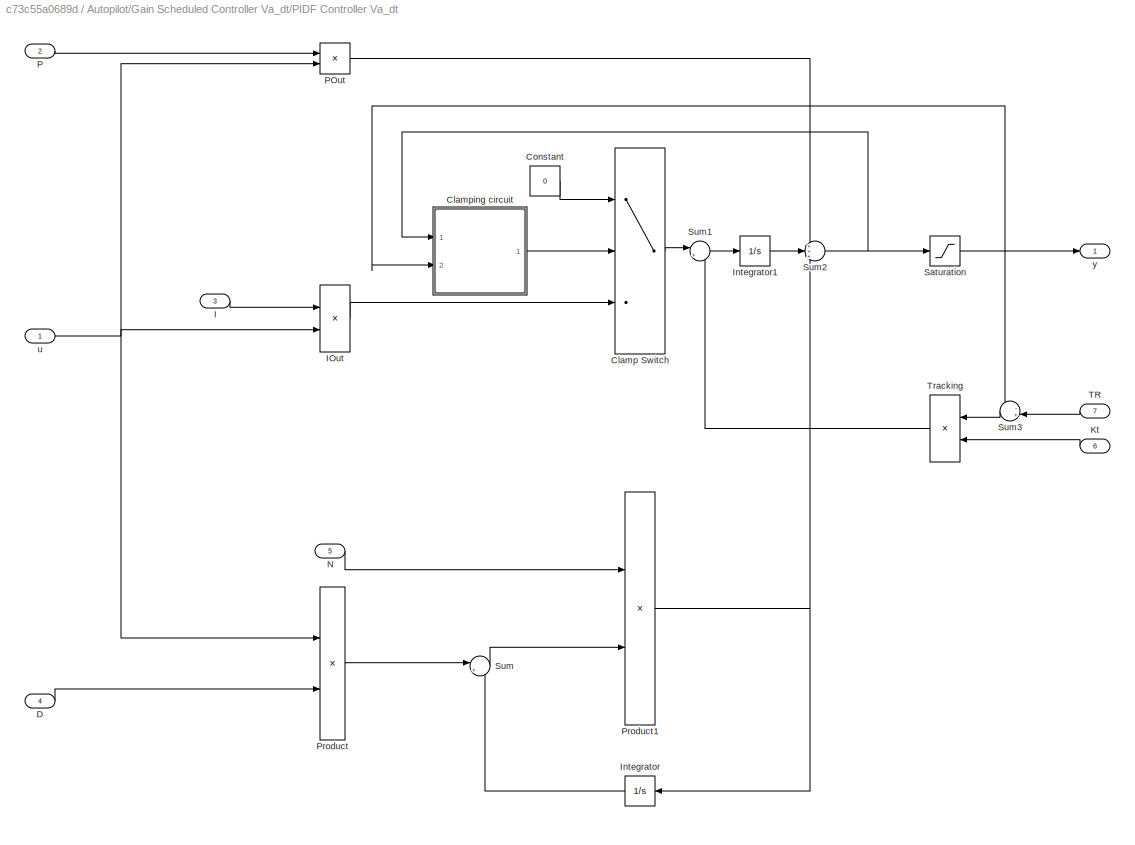
BLOCK [SubSystem] Autopilot/Gain Scheduled Controller Va_dt/PIDF Controller Va_dt
  Ports = [7, 1]
  RequestExecContextInheritance = off
BLOCK [Lookup_n-D] Autopilot/Gain Scheduled Controller Va_dt/PIDF Controller Va_dt Kd 2D Lookup Table
  BreakpointsForDimension1 = SkywalkerX8.Control.Longitudinal.SchedulingVariables.VaArray
  BreakpointsForDimension2 = [1 2 3 4 5]
  InternalRulePriority = Speed
  NumberOfTableDimensions = 1
  Ports = [1, 1]
  RndMeth = Simplest
  Table = SkywalkerX8.Control.Longitudinal.VaDtController.KdVaDt
BLOCK [Lookup_n-D] Autopilot/Gain Scheduled Controller Va_dt/PIDF Controller Va_dt Ki 2D Lookup Table
  BreakpointsForDimension1 = SkywalkerX8.Control.Longitudinal.SchedulingVariables.VaArray
  BreakpointsForDimension2 = [1 2 3 4 5]
  InternalRulePriority = Speed
  NumberOfTableDimensions = 1
  Ports = [1, 1]
  RndMeth = Simplest
  Table = SkywalkerX8.Control.Longitudinal.VaDtController.KiVaDt
BLOCK [Lookup_n-D] Autopilot/Gain Scheduled Controller Va_dt/PIDF Controller Va_dt Kp 2D Lookup Table
  BreakpointsForDimension1 = SkywalkerX8.Control.Longitudinal.SchedulingVariables.VaArray
  BreakpointsForDimension2 = [1 2 3 4 5]
  InternalRulePriority = Speed
  NumberOfTableDimensions = 1
  Ports = [1, 1]
  RndMeth = Simplest
  Table = SkywalkerX8.Control.Longitudinal.VaDtController.KpVaDt
BLOCK [Gain] Autopilot/Gain Scheduled Controller Va_dt/PIDF Controller Va_dt Kt Tracking Gain Scalar
  Gain = SkywalkerX8.Control.Longitudinal.VaDtController.KtScalar
  OutDataTypeStr = Inherit: Inherit via internal rule
  ParamDataTypeStr = Inherit: Inherit via internal rule
  SaturateOnIntegerOverflow = off
BLOCK [Lookup_n-D] Autopilot/Gain Scheduled Controller Va_dt/PIDF Controller Va_dt N 2D Lookup Table
  BreakpointsForDimension1 = SkywalkerX8.Control.Longitudinal.SchedulingVariables.VaArray
  BreakpointsForDimension2 = [1 2 3 4 5]
  InternalRulePriority = Speed
  NumberOfTableDimensions = 1
  Ports = [1, 1]
  RndMeth = Simplest
  Table = SkywalkerX8.Control.Longitudinal.VaDtController.NVaDt
BLOCK [Switch] Autopilot/Gain Scheduled Controller Va_dt/PIDF Controller Va_dt/Clamp Switch
  Criteria = u2 ~= 0
  InputSameDT = off
  SaturateOnIntegerOverflow = off
BLOCK [SubSystem] Autopilot/Gain Scheduled Controller Va_dt/PIDF Controller Va_dt/Clamping circuit
  Ports = [2, 1]
  RequestExecContextInheritance = off
BLOCK [Outport] Autopilot/Gain Scheduled Controller Va_dt/PIDF Controller Va_dt/Clamping circuit/Clamp
  DisableCoverage = on
  IconDisplay = Port number
BLOCK [Memory] Autopilot/Gain Scheduled Controller Va_dt/PIDF Controller Va_dt/Clamping circuit/Memory
  DisableCoverage = on
BLOCK [RelationalOperator] Autopilot/Gain Scheduled Controller Va_dt/PIDF Controller Va_dt/Clamping circuit/NotEqual
  DisableCoverage = on
  Operator = ~=
  Ports = [2, 1]
BLOCK [Inport] Autopilot/Gain Scheduled Controller Va_dt/PIDF Controller Va_dt/Clamping circuit/postSat
  DisableCoverage = on
  IconDisplay = Port number
  Port = 2
BLOCK [Inport] Autopilot/Gain Scheduled Controller Va_dt/PIDF Controller Va_dt/Clamping circuit/preSat
  DisableCoverage = on
  IconDisplay = Port number
BLOCK [Constant] Autopilot/Gain Scheduled Controller Va_dt/PIDF Controller Va_dt/Constant
  Value = 0
BLOCK [Inport] Autopilot/Gain Scheduled Controller Va_dt/PIDF Controller Va_dt/D
  IconDisplay = Port number
  Port = 4
BLOCK [Inport] Autopilot/Gain Scheduled Controller Va_dt/PIDF Controller Va_dt/I
  IconDisplay = Port number
  Port = 3
BLOCK [Product] Autopilot/Gain Scheduled Controller Va_dt/PIDF Controller Va_dt/IOut
  DisableCoverage = on
  InputSameDT = off
  OutDataTypeStr = Inherit: Inherit via internal rule
  Ports = [2, 1]
  RndMeth = Floor
  SaturateOnIntegerOverflow = off
BLOCK [Integrator] Autopilot/Gain Scheduled Controller Va_dt/PIDF Controller Va_dt/Integrator
  Ports = [1, 1]
BLOCK [Integrator] Autopilot/Gain Scheduled Controller Va_dt/PIDF Controller Va_dt/Integrator1
  IgnoreLimit = on
  InitialCondition = SkywalkerX8.InitialConditions.VaDtController.Integrator
  Ports = [1, 1]
BLOCK [Inport] Autopilot/Gain Scheduled Controller Va_dt/PIDF Controller Va_dt/Kt
  IconDisplay = Port number
  Port = 6
BLOCK [Inport] Autopilot/Gain Scheduled Controller Va_dt/PIDF Controller Va_dt/N
  IconDisplay = Port number
  Port = 5
BLOCK [Inport] Autopilot/Gain Scheduled Controller Va_dt/PIDF Controller Va_dt/P
  IconDisplay = Port number
  Port = 2
BLOCK [Product] Autopilot/Gain Scheduled Controller Va_dt/PIDF Controller Va_dt/POut
  InputSameDT = off
  OutDataTypeStr = Inherit: Inherit via internal rule
  Ports = [2, 1]
  RndMeth = Floor
  SaturateOnIntegerOverflow = off
BLOCK [Product] Autopilot/Gain Scheduled Controller Va_dt/PIDF Controller Va_dt/Product
  InputSameDT = off
  OutDataTypeStr = Inherit: Inherit via internal rule
  Ports = [2, 1]
  RndMeth = Floor
  SaturateOnIntegerOverflow = off
BLOCK [Product] Autopilot/Gain Scheduled Controller Va_dt/PIDF Controller Va_dt/Product1
  InputSameDT = off
  OutDataTypeStr = Inherit: Inherit via internal rule
  Ports = [2, 1]
  RndMeth = Floor
  SaturateOnIntegerOverflow = off
BLOCK [Saturate] Autopilot/Gain Scheduled Controller Va_dt/PIDF Controller Va_dt/Saturation
  InputPortMap = u0
  LowerLimit = SkywalkerX8.Control.Longitudinal.VaDtController.lowerSaturationDt
  Ports = [1, 1]
  UpperLimit = SkywalkerX8.Control.Longitudinal.VaDtController.upperSaturationDt
BLOCK [Sum] Autopilot/Gain Scheduled Controller Va_dt/PIDF Controller Va_dt/Sum
  IconShape = round
  InputSameDT = off
  Inputs = |+-
  OutDataTypeStr = Inherit: Inherit via internal rule
  Ports = [2, 1]
  SaturateOnIntegerOverflow = off
BLOCK [Sum] Autopilot/Gain Scheduled Controller Va_dt/PIDF Controller Va_dt/Sum1
  IconShape = round
  InputSameDT = off
  Inputs = |++
  OutDataTypeStr = Inherit: Inherit via internal rule
  Ports = [2, 1]
  SaturateOnIntegerOverflow = off
BLOCK [Sum] Autopilot/Gain Scheduled Controller Va_dt/PIDF Controller Va_dt/Sum2
  IconShape = round
  InputSameDT = off
  Inputs = +++
  OutDataTypeStr = Inherit: Inherit via internal rule
  Ports = [3, 1]
  SaturateOnIntegerOverflow = off
BLOCK [Sum] Autopilot/Gain Scheduled Controller Va_dt/PIDF Controller Va_dt/Sum3
  IconShape = round
  InputSameDT = off
  Inputs = -+|
  OutDataTypeStr = Inherit: Inherit via internal rule
  Ports = [2, 1]
  SaturateOnIntegerOverflow = off
BLOCK [Inport] Autopilot/Gain Scheduled Controller Va_dt/PIDF Controller Va_dt/TR
  IconDisplay = Port number
  Port = 7
BLOCK [Product] Autopilot/Gain Scheduled Controller Va_dt/PIDF Controller Va_dt/Tracking
  DisableCoverage = on
  InputSameDT = off
  OutDataTypeStr = Inherit: Inherit via internal rule
  Ports = [2, 1]
  RndMeth = Floor
  SaturateOnIntegerOverflow = off
BLOCK [Inport] Autopilot/Gain Scheduled Controller Va_dt/PIDF Controller Va_dt/u
  IconDisplay = Port number
BLOCK [Outport] Autopilot/Gain Scheduled Controller Va_dt/PIDF Controller Va_dt/y
  IconDisplay = Port number
  InitialOutput = 0
BLOCK [Inport] Autopilot/Gain Scheduled Controller Va_dt/TR
  IconDisplay = Port number
  Port = 3
BLOCK [Inport] Autopilot/Gain Scheduled Controller Va_dt/Va
  IconDisplay = Port number
  Port = 2
BLOCK [Inport] Autopilot/Gain Scheduled Controller Va_dt/Va_e
  IconDisplay = Port number
BLOCK [Outport] Autopilot/Gain Scheduled Controller Va_dt/dt
  IconDisplay = Port number
BLOCK [SubSystem] Autopilot/Gain Scheduled Controller Va_theta
  Ports = [4, 1]
  RequestExecContextInheritance = off
BLOCK [SubSystem] Autopilot/Gain Scheduled Controller Va_theta/PIDF Controller Va_theta
  Ports = [7, 1]
  RequestExecContextInheritance = off
BLOCK [Lookup_n-D] Autopilot/Gain Scheduled Controller Va_theta/PIDF Controller Va_theta Kd 2D Lookup Table
  BreakpointsForDimension1 = SkywalkerX8.Control.Longitudinal.SchedulingVariables.VaArray
  BreakpointsForDimension2 = SkywalkerX8.Control.Longitudinal.SchedulingVariables.alphaArray
  InternalRulePriority = Speed
  Ports = [2, 1]
  RndMeth = Simplest
  Table = SkywalkerX8.Control.Longitudinal.VaThetaController.KdVaTheta
BLOCK [Lookup_n-D] Autopilot/Gain Scheduled Controller Va_theta/PIDF Controller Va_theta Ki 2D Lookup Table
  BreakpointsForDimension1 = SkywalkerX8.Control.Longitudinal.SchedulingVariables.VaArray
  BreakpointsForDimension2 = SkywalkerX8.Control.Longitudinal.SchedulingVariables.alphaArray
  InternalRulePriority = Speed
  Ports = [2, 1]
  RndMeth = Simplest
  Table = SkywalkerX8.Control.Longitudinal.VaThetaController.KiVaTheta
BLOCK [Lookup_n-D] Autopilot/Gain Scheduled Controller Va_theta/PIDF Controller Va_theta Kp 2D Lookup Table
  BreakpointsForDimension1 = SkywalkerX8.Control.Longitudinal.SchedulingVariables.VaArray
  BreakpointsForDimension2 = SkywalkerX8.Control.Longitudinal.SchedulingVariables.alphaArray
  InternalRulePriority = Speed
  Ports = [2, 1]
  RndMeth = Simplest
  Table = SkywalkerX8.Control.Longitudinal.VaThetaController.KpVaTheta
BLOCK [Gain] Autopilot/Gain Scheduled Controller Va_theta/PIDF Controller Va_theta Kt Tracking Gain Scalar
  Gain = SkywalkerX8.Control.Longitudinal.VaThetaController.KtScalar
  OutDataTypeStr = Inherit: Inherit via internal rule
  ParamDataTypeStr = Inherit: Inherit via internal rule
  SaturateOnIntegerOverflow = off
BLOCK [Lookup_n-D] Autopilot/Gain Scheduled Controller Va_theta/PIDF Controller Va_theta N 2D Lookup Table
  BreakpointsForDimension1 = SkywalkerX8.Control.Longitudinal.SchedulingVariables.VaArray
  BreakpointsForDimension2 = SkywalkerX8.Control.Longitudinal.SchedulingVariables.alphaArray
  InternalRulePriority = Speed
  Ports = [2, 1]
  RndMeth = Simplest
  Table = SkywalkerX8.Control.Longitudinal.VaThetaController.NVaTheta
BLOCK [Switch] Autopilot/Gain Scheduled Controller Va_theta/PIDF Controller Va_theta/Clamp Switch
  Criteria = u2 ~= 0
  InputSameDT = off
  SaturateOnIntegerOverflow = off
BLOCK [SubSystem] Autopilot/Gain Scheduled Controller Va_theta/PIDF Controller Va_theta/Clamping circuit
  Ports = [2, 1]
  RequestExecContextInheritance = off
BLOCK [Outport] Autopilot/Gain Scheduled Controller Va_theta/PIDF Controller Va_theta/Clamping circuit/Clamp
  DisableCoverage = on
  IconDisplay = Port number
BLOCK [Memory] Autopilot/Gain Scheduled Controller Va_theta/PIDF Controller Va_theta/Clamping circuit/Memory
  DisableCoverage = on
BLOCK [RelationalOperator] Autopilot/Gain Scheduled Controller Va_theta/PIDF Controller Va_theta/Clamping circuit/NotEqual
  DisableCoverage = on
  Operator = ~=
  Ports = [2, 1]
BLOCK [Inport] Autopilot/Gain Scheduled Controller Va_theta/PIDF Controller Va_theta/Clamping circuit/postSat
  DisableCoverage = on
  IconDisplay = Port number
  Port = 2
BLOCK [Inport] Autopilot/Gain Scheduled Controller Va_theta/PIDF Controller Va_theta/Clamping circuit/preSat
  DisableCoverage = on
  IconDisplay = Port number
BLOCK [Constant] Autopilot/Gain Scheduled Controller Va_theta/PIDF Controller Va_theta/Constant
  Value = 0
BLOCK [Inport] Autopilot/Gain Scheduled Controller Va_theta/PIDF Controller Va_theta/D
  IconDisplay = Port number
  Port = 4
BLOCK [Inport] Autopilot/Gain Scheduled Controller Va_theta/PIDF Controller Va_theta/I
  IconDisplay = Port number
  Port = 3
BLOCK [Product] Autopilot/Gain Scheduled Controller Va_theta/PIDF Controller Va_theta/IOut
  DisableCoverage = on
  InputSameDT = off
  OutDataTypeStr = Inherit: Inherit via internal rule
  Ports = [2, 1]
  RndMeth = Floor
  SaturateOnIntegerOverflow = off
BLOCK [Integrator] Autopilot/Gain Scheduled Controller Va_theta/PIDF Controller Va_theta/Integrator
  Ports = [1, 1]
BLOCK [Integrator] Autopilot/Gain Scheduled Controller Va_theta/PIDF Controller Va_theta/Integrator1
  IgnoreLimit = on
  InitialCondition = -SkywalkerX8.InitialConditions.PhiThetaPsi(2)
  Ports = [1, 1]
BLOCK [Inport] Autopilot/Gain Scheduled Controller Va_theta/PIDF Controller Va_theta/Kt
  IconDisplay = Port number
  Port = 6
BLOCK [Inport] Autopilot/Gain Scheduled Controller Va_theta/PIDF Controller Va_theta/N
  IconDisplay = Port number
  Port = 5
BLOCK [Inport] Autopilot/Gain Scheduled Controller Va_theta/PIDF Controller Va_theta/P
  IconDisplay = Port number
  Port = 2
BLOCK [Product] Autopilot/Gain Scheduled Controller Va_theta/PIDF Controller Va_theta/POut
  InputSameDT = off
  OutDataTypeStr = Inherit: Inherit via internal rule
  Ports = [2, 1]
  RndMeth = Floor
  SaturateOnIntegerOverflow = off
BLOCK [Product] Autopilot/Gain Scheduled Controller Va_theta/PIDF Controller Va_theta/Product
  InputSameDT = off
  OutDataTypeStr = Inherit: Inherit via internal rule
  Ports = [2, 1]
  RndMeth = Floor
  SaturateOnIntegerOverflow = off
BLOCK [Product] Autopilot/Gain Scheduled Controller Va_theta/PIDF Controller Va_theta/Product1
  InputSameDT = off
  OutDataTypeStr = Inherit: Inherit via internal rule
  Ports = [2, 1]
  RndMeth = Floor
  SaturateOnIntegerOverflow = off
BLOCK [Saturate] Autopilot/Gain Scheduled Controller Va_theta/PIDF Controller Va_theta/Saturation
  InputPortMap = u0
  LowerLimit = SkywalkerX8.Control.Longitudinal.VaThetaController.lowerSaturationThetaC
  Ports = [1, 1]
  UpperLimit = SkywalkerX8.Control.Longitudinal.VaThetaController.upperSaturationThetaC
BLOCK [Sum] Autopilot/Gain Scheduled Controller Va_theta/PIDF Controller Va_theta/Sum
  IconShape = round
  InputSameDT = off
  Inputs = |+-
  OutDataTypeStr = Inherit: Inherit via internal rule
  Ports = [2, 1]
  SaturateOnIntegerOverflow = off
BLOCK [Sum] Autopilot/Gain Scheduled Controller Va_theta/PIDF Controller Va_theta/Sum1
  IconShape = round
  InputSameDT = off
  Inputs = |++
  OutDataTypeStr = Inherit: Inherit via internal rule
  Ports = [2, 1]
  SaturateOnIntegerOverflow = off
BLOCK [Sum] Autopilot/Gain Scheduled Controller Va_theta/PIDF Controller Va_theta/Sum2
  IconShape = round
  InputSameDT = off
  Inputs = +++
  OutDataTypeStr = Inherit: Inherit via internal rule
  Ports = [3, 1]
  SaturateOnIntegerOverflow = off
BLOCK [Sum] Autopilot/Gain Scheduled Controller Va_theta/PIDF Controller Va_theta/Sum3
  IconShape = round
  InputSameDT = off
  Inputs = -+|
  OutDataTypeStr = Inherit: Inherit via internal rule
  Ports = [2, 1]
  SaturateOnIntegerOverflow = off
BLOCK [Inport] Autopilot/Gain Scheduled Controller Va_theta/PIDF Controller Va_theta/TR
  IconDisplay = Port number
  Port = 7
BLOCK [Product] Autopilot/Gain Scheduled Controller Va_theta/PIDF Controller Va_theta/Tracking
  DisableCoverage = on
  InputSameDT = off
  OutDataTypeStr = Inherit: Inherit via internal rule
  Ports = [2, 1]
  RndMeth = Floor
  SaturateOnIntegerOverflow = off
BLOCK [Inport] Autopilot/Gain Scheduled Controller Va_theta/PIDF Controller Va_theta/u
  IconDisplay = Port number
BLOCK [Outport] Autopilot/Gain Scheduled Controller Va_theta/PIDF Controller Va_theta/y
  IconDisplay = Port number
  InitialOutput = 0
BLOCK [Gain] Autopilot/Gain Scheduled Controller Va_theta/Sign Inversion
  Gain = -1
  OutDataTypeStr = Inherit: Inherit via internal rule
  ParamDataTypeStr = Inherit: Inherit via internal rule
  SaturateOnIntegerOverflow = off
BLOCK [Inport] Autopilot/Gain Scheduled Controller Va_theta/TR
  IconDisplay = Port number
  Port = 4
BLOCK [Gain] Autopilot/Gain Scheduled Controller Va_theta/Tracking Sign Inversion
  Gain = -1
  OutDataTypeStr = Inherit: Inherit via internal rule
  ParamDataTypeStr = Inherit: Inherit via internal rule
  SaturateOnIntegerOverflow = off
BLOCK [Inport] Autopilot/Gain Scheduled Controller Va_theta/Va
  IconDisplay = Port number
  Port = 2
BLOCK [Inport] Autopilot/Gain Scheduled Controller Va_theta/Va_e
  IconDisplay = Port number
BLOCK [Inport] Autopilot/Gain Scheduled Controller Va_theta/alpha
  IconDisplay = Port number
  Port = 3
BLOCK [Outport] Autopilot/Gain Scheduled Controller Va_theta/theta_c_Va
  IconDisplay = Port number
BLOCK [SubSystem] Autopilot/Gain Scheduled Controller h_theta
  Ports = [4, 1]
  RequestExecContextInheritance = off
BLOCK [SubSystem] Autopilot/Gain Scheduled Controller h_theta/PIDF Controller h_theta
  Ports = [7, 1]
  RequestExecContextInheritance = off
BLOCK [Lookup_n-D] Autopilot/Gain Scheduled Controller h_theta/PIDF Controller h_theta Kd 2D Lookup Table
  BreakpointsForDimension1 = SkywalkerX8.Control.Longitudinal.SchedulingVariables.VaArray
  BreakpointsForDimension2 = SkywalkerX8.Control.Longitudinal.SchedulingVariables.alphaArray
  InternalRulePriority = Speed
  Ports = [2, 1]
  RndMeth = Simplest
  Table = SkywalkerX8.Control.Longitudinal.altController.KdAlt
BLOCK [Lookup_n-D] Autopilot/Gain Scheduled Controller h_theta/PIDF Controller h_theta Ki 2D Lookup Table
  BreakpointsForDimension1 = SkywalkerX8.Control.Longitudinal.SchedulingVariables.VaArray
  BreakpointsForDimension2 = SkywalkerX8.Control.Longitudinal.SchedulingVariables.alphaArray
  InternalRulePriority = Speed
  Ports = [2, 1]
  RndMeth = Simplest
  Table = SkywalkerX8.Control.Longitudinal.altController.KiAlt
BLOCK [Lookup_n-D] Autopilot/Gain Scheduled Controller h_theta/PIDF Controller h_theta Kp 2D Lookup Table
  BreakpointsForDimension1 = SkywalkerX8.Control.Longitudinal.SchedulingVariables.VaArray
  BreakpointsForDimension2 = SkywalkerX8.Control.Longitudinal.SchedulingVariables.alphaArray
  InternalRulePriority = Speed
  Ports = [2, 1]
  RndMeth = Simplest
  Table = SkywalkerX8.Control.Longitudinal.altController.KpAlt
BLOCK [Gain] Autopilot/Gain Scheduled Controller h_theta/PIDF Controller h_theta Kt Tracking Gain Scalar
  Gain = SkywalkerX8.Control.Longitudinal.altController.KtScalar
  OutDataTypeStr = Inherit: Inherit via internal rule
  ParamDataTypeStr = Inherit: Inherit via internal rule
  SaturateOnIntegerOverflow = off
BLOCK [Lookup_n-D] Autopilot/Gain Scheduled Controller h_theta/PIDF Controller h_theta N 2D Lookup Table
  BreakpointsForDimension1 = SkywalkerX8.Control.Longitudinal.SchedulingVariables.VaArray
  BreakpointsForDimension2 = SkywalkerX8.Control.Longitudinal.SchedulingVariables.alphaArray
  InternalRulePriority = Speed
  Ports = [2, 1]
  RndMeth = Simplest
  Table = SkywalkerX8.Control.Longitudinal.altController.NAlt
BLOCK [Switch] Autopilot/Gain Scheduled Controller h_theta/PIDF Controller h_theta/Clamp Switch
  Criteria = u2 ~= 0
  InputSameDT = off
  SaturateOnIntegerOverflow = off
BLOCK [SubSystem] Autopilot/Gain Scheduled Controller h_theta/PIDF Controller h_theta/Clamping circuit
  Ports = [2, 1]
  RequestExecContextInheritance = off
BLOCK [Outport] Autopilot/Gain Scheduled Controller h_theta/PIDF Controller h_theta/Clamping circuit/Clamp
  DisableCoverage = on
  IconDisplay = Port number
BLOCK [Memory] Autopilot/Gain Scheduled Controller h_theta/PIDF Controller h_theta/Clamping circuit/Memory
  DisableCoverage = on
BLOCK [RelationalOperator] Autopilot/Gain Scheduled Controller h_theta/PIDF Controller h_theta/Clamping circuit/NotEqual
  DisableCoverage = on
  Operator = ~=
  Ports = [2, 1]
BLOCK [Inport] Autopilot/Gain Scheduled Controller h_theta/PIDF Controller h_theta/Clamping circuit/postSat
  DisableCoverage = on
  IconDisplay = Port number
  Port = 2
BLOCK [Inport] Autopilot/Gain Scheduled Controller h_theta/PIDF Controller h_theta/Clamping circuit/preSat
  DisableCoverage = on
  IconDisplay = Port number
BLOCK [Constant] Autopilot/Gain Scheduled Controller h_theta/PIDF Controller h_theta/Constant
  Value = 0
BLOCK [Inport] Autopilot/Gain Scheduled Controller h_theta/PIDF Controller h_theta/D
  IconDisplay = Port number
  Port = 4
BLOCK [Inport] Autopilot/Gain Scheduled Controller h_theta/PIDF Controller h_theta/I
  IconDisplay = Port number
  Port = 3
BLOCK [Product] Autopilot/Gain Scheduled Controller h_theta/PIDF Controller h_theta/IOut
  DisableCoverage = on
  InputSameDT = off
  OutDataTypeStr = Inherit: Inherit via internal rule
  Ports = [2, 1]
  RndMeth = Floor
  SaturateOnIntegerOverflow = off
BLOCK [Integrator] Autopilot/Gain Scheduled Controller h_theta/PIDF Controller h_theta/Integrator
  Ports = [1, 1]
BLOCK [Integrator] Autopilot/Gain Scheduled Controller h_theta/PIDF Controller h_theta/Integrator1
  IgnoreLimit = on
  InitialCondition = SkywalkerX8.InitialConditions.altController.Integrator
  Ports = [1, 1]
BLOCK [Inport] Autopilot/Gain Scheduled Controller h_theta/PIDF Controller h_theta/Kt
  IconDisplay = Port number
  Port = 6
BLOCK [Inport] Autopilot/Gain Scheduled Controller h_theta/PIDF Controller h_theta/N
  IconDisplay = Port number
  Port = 5
BLOCK [Inport] Autopilot/Gain Scheduled Controller h_theta/PIDF Controller h_theta/P
  IconDisplay = Port number
  Port = 2
BLOCK [Product] Autopilot/Gain Scheduled Controller h_theta/PIDF Controller h_theta/POut
  InputSameDT = off
  OutDataTypeStr = Inherit: Inherit via internal rule
  Ports = [2, 1]
  RndMeth = Floor
  SaturateOnIntegerOverflow = off
BLOCK [Product] Autopilot/Gain Scheduled Controller h_theta/PIDF Controller h_theta/Product
  InputSameDT = off
  OutDataTypeStr = Inherit: Inherit via internal rule
  Ports = [2, 1]
  RndMeth = Floor
  SaturateOnIntegerOverflow = off
BLOCK [Product] Autopilot/Gain Scheduled Controller h_theta/PIDF Controller h_theta/Product1
  InputSameDT = off
  OutDataTypeStr = Inherit: Inherit via internal rule
  Ports = [2, 1]
  RndMeth = Floor
  SaturateOnIntegerOverflow = off
BLOCK [Saturate] Autopilot/Gain Scheduled Controller h_theta/PIDF Controller h_theta/Saturation
  InputPortMap = u0
  LowerLimit = SkywalkerX8.Control.Longitudinal.altController.lowerSaturationThetaC
  Ports = [1, 1]
  UpperLimit = SkywalkerX8.Control.Longitudinal.altController.upperSaturationThetaC
BLOCK [Sum] Autopilot/Gain Scheduled Controller h_theta/PIDF Controller h_theta/Sum
  IconShape = round
  InputSameDT = off
  Inputs = |+-
  OutDataTypeStr = Inherit: Inherit via internal rule
  Ports = [2, 1]
  SaturateOnIntegerOverflow = off
BLOCK [Sum] Autopilot/Gain Scheduled Controller h_theta/PIDF Controller h_theta/Sum1
  IconShape = round
  InputSameDT = off
  Inputs = |++
  OutDataTypeStr = Inherit: Inherit via internal rule
  Ports = [2, 1]
  SaturateOnIntegerOverflow = off
BLOCK [Sum] Autopilot/Gain Scheduled Controller h_theta/PIDF Controller h_theta/Sum2
  IconShape = round
  InputSameDT = off
  Inputs = +++
  OutDataTypeStr = Inherit: Inherit via internal rule
  Ports = [3, 1]
  SaturateOnIntegerOverflow = off
BLOCK [Sum] Autopilot/Gain Scheduled Controller h_theta/PIDF Controller h_theta/Sum3
  IconShape = round
  InputSameDT = off
  Inputs = -+|
  OutDataTypeStr = Inherit: Inherit via internal rule
  Ports = [2, 1]
  SaturateOnIntegerOverflow = off
BLOCK [Inport] Autopilot/Gain Scheduled Controller h_theta/PIDF Controller h_theta/TR
  IconDisplay = Port number
  Port = 7
BLOCK [Product] Autopilot/Gain Scheduled Controller h_theta/PIDF Controller h_theta/Tracking
  DisableCoverage = on
  InputSameDT = off
  OutDataTypeStr = Inherit: Inherit via internal rule
  Ports = [2, 1]
  RndMeth = Floor
  SaturateOnIntegerOverflow = off
BLOCK [Inport] Autopilot/Gain Scheduled Controller h_theta/PIDF Controller h_theta/u
  IconDisplay = Port number
BLOCK [Outport] Autopilot/Gain Scheduled Controller h_theta/PIDF Controller h_theta/y
  IconDisplay = Port number
  InitialOutput = 0
BLOCK [Inport] Autopilot/Gain Scheduled Controller h_theta/TR
  IconDisplay = Port number
  Port = 4
BLOCK [Inport] Autopilot/Gain Scheduled Controller h_theta/Va
  IconDisplay = Port number
  Port = 2
BLOCK [Inport] Autopilot/Gain Scheduled Controller h_theta/alpha
  IconDisplay = Port number
  Port = 3
BLOCK [Inport] Autopilot/Gain Scheduled Controller h_theta/h_e
  IconDisplay = Port number
BLOCK [Outport] Autopilot/Gain Scheduled Controller h_theta/theta_c_h
  IconDisplay = Port number
BLOCK [Gain] Autopilot/Gain1
  Gain = sin(0.5*SkywalkerX8.Control.Longitudinal.altController.upperSaturationThetaC)
  OutDataTypeStr = Inherit: Inherit via internal rule
  ParamDataTypeStr = Inherit: Inherit via internal rule
  SaturateOnIntegerOverflow = off
BLOCK [Gain] Autopilot/Gain2
  Gain = SkywalkerX8.System.Gravity*tan(0.5*SkywalkerX8.Control.Lateral.ChiController.lowerSaturationPhiC)
  OutDataTypeStr = Inherit: Inherit via internal rule
  ParamDataTypeStr = Inherit: Inherit via internal rule
  SaturateOnIntegerOverflow = off
BLOCK [Gain] Autopilot/Gain3
  Gain = SkywalkerX8.System.Gravity*tan(0.5*SkywalkerX8.Control.Lateral.ChiController.upperSaturationPhiC)
  OutDataTypeStr = Inherit: Inherit via internal rule
  ParamDataTypeStr = Inherit: Inherit via internal rule
  SaturateOnIntegerOverflow = off
BLOCK [Goto] Autopilot/Goto
  GotoTag = Va
BLOCK [Goto] Autopilot/Goto1
  GotoTag = alpha
BLOCK [Goto] Autopilot/Goto2
  GotoTag = theta_c
BLOCK [Goto] Autopilot/Goto3
  GotoTag = dt
BLOCK [InitialCondition] Autopilot/IC
  Value = SkywalkerX8.InitialConditions.dt
BLOCK [InitialCondition] Autopilot/IC1
  Value = SkywalkerX8.InitialConditions.PhiThetaPsi(2)
BLOCK [Math] Autopilot/Math Function
  Operator = reciprocal
  Ports = [1, 1]
BLOCK [Math] Autopilot/Math Function1
  Operator = reciprocal
  Ports = [1, 1]
BLOCK [Gain] Autopilot/Mixing Matrix
  Gain = [0.5 -0.5;0.5 0.5]
  Multiplication = Matrix(K*u)
  OutDataTypeStr = Inherit: Inherit via internal rule
  ParamDataTypeStr = Inherit: Inherit via internal rule
  SaturateOnIntegerOverflow = off
BLOCK [Mux] Autopilot/Mux
  DisplayOption = bar
  Inputs = 2
  Ports = [2, 1]
BLOCK [Inport] Autopilot/Phi
  IconDisplay = Port number
  Port = 10
BLOCK [Sum] Autopilot/Sum
  IconShape = round
  InputSameDT = off
  Inputs = |+-
  OutDataTypeStr = Inherit: Inherit via internal rule
  Ports = [2, 1]
  SaturateOnIntegerOverflow = off
BLOCK [Sum] Autopilot/Sum1
  IconShape = round
  InputSameDT = off
  Inputs = |+-
  OutDataTypeStr = Inherit: Inherit via internal rule
  Ports = [2, 1]
  SaturateOnIntegerOverflow = off
BLOCK [Sum] Autopilot/Sum2
  IconShape = round
  InputSameDT = off
  Inputs = |+-
  OutDataTypeStr = Inherit: Inherit via internal rule
  Ports = [2, 1]
  SaturateOnIntegerOverflow = off
BLOCK [Sum] Autopilot/Sum3
  IconShape = round
  InputSameDT = off
  Inputs = |+-
  OutDataTypeStr = Inherit: Inherit via internal rule
  Ports = [2, 1]
  SaturateOnIntegerOverflow = off
BLOCK [Sum] Autopilot/Sum4
  IconShape = round
  InputSameDT = off
  Inputs = |+-
  OutDataTypeStr = Inherit: Inherit via internal rule
  Ports = [2, 1]
  SaturateOnIntegerOverflow = off
BLOCK [Inport] Autopilot/Va
  IconDisplay = Port number
  Port = 4
BLOCK [SubSystem] Autopilot/Va Rate Limiter
  Ports = [3, 1]
  RequestExecContextInheritance = off
BLOCK [UnitDelay] Autopilot/Va Rate Limiter/Delay Input2
  Description = Store in Global RAM
  DisableCoverage = on
  InitialCondition = initOutput
  SampleTime = -1
BLOCK [Sum] Autopilot/Va Rate Limiter/Difference Inputs1
  Description = Add in CPU
  DisableCoverage = on
  InputSameDT = off
  Inputs = +-
  OutDataTypeStr = Inherit: Inherit via back propagation
  Ports = [2, 1]
  SaturateOnIntegerOverflow = off
BLOCK [Sum] Autopilot/Va Rate Limiter/Difference Inputs2
  Description = Add in CPU
  InputSameDT = off
  OutDataTypeStr = Inherit: Inherit via back propagation
  Ports = [2, 1]
  SaturateOnIntegerOverflow = off
BLOCK [DataTypeDuplicate] Autopilot/Va Rate Limiter/FixPt Data Type Duplicate
  DisableCoverage = on
  NumInputPorts = 7
  Ports = [7]
BLOCK [Reference] Autopilot/Va Rate Limiter/Saturation Dynamic  REF=simulink/Discontinuities/Saturation
Dynamic
  Ports = [3, 1]
  SourceBlock = simulink/Discontinuities/Saturation\nDynamic
  SourceProductBaseCode = SL
  SourceProductName = Simulink
  SourceType = Saturation Dynamic
BLOCK [Outport] Autopilot/Va Rate Limiter/Y
  IconDisplay = Port number
  InitialOutput = 0
BLOCK [Product] Autopilot/Va Rate Limiter/delta fall limit
  DisableCoverage = on
  InputSameDT = off
  Inputs = **
  OutDataTypeStr = Inherit: Inherit via back propagation
  Ports = [2, 1]
  RndMeth = Floor
BLOCK [Product] Autopilot/Va Rate Limiter/delta rise limit
  DisableCoverage = on
  InputSameDT = off
  Inputs = **
  OutDataTypeStr = Inherit: Inherit via back propagation
  Ports = [2, 1]
  RndMeth = Floor
BLOCK [Inport] Autopilot/Va Rate Limiter/lo
  IconDisplay = Port number
  Port = 3
BLOCK [SampleTimeMath] Autopilot/Va Rate Limiter/sample time
  DisableCoverage = on
  TsampMathOp = Ts Only
  weightValue = 1
BLOCK [Inport] Autopilot/Va Rate Limiter/u
  IconDisplay = Port number
  Port = 2
BLOCK [Inport] Autopilot/Va Rate Limiter/up
  IconDisplay = Port number
BLOCK [Inport] Autopilot/Va_c
  IconDisplay = Port number
BLOCK [Inport] Autopilot/alpha
  IconDisplay = Port number
  Port = 7
BLOCK [Outport] Autopilot/del
  IconDisplay = Port number
  Port = 3
BLOCK [Outport] Autopilot/der
  IconDisplay = Port number
  Port = 2
BLOCK [Outport] Autopilot/dt
  IconDisplay = Port number
BLOCK [Inport] Autopilot/h
  IconDisplay = Port number
  Port = 5
BLOCK [SubSystem] Autopilot/h Rate Limiter Dynamic
  Ports = [3, 1]
  RequestExecContextInheritance = off
BLOCK [UnitDelay] Autopilot/h Rate Limiter Dynamic/Delay Input2
  Description = Store in Global RAM
  DisableCoverage = on
  InitialCondition = initOutput
  SampleTime = -1
BLOCK [Sum] Autopilot/h Rate Limiter Dynamic/Difference Inputs1
  Description = Add in CPU
  DisableCoverage = on
  InputSameDT = off
  Inputs = +-
  OutDataTypeStr = Inherit: Inherit via back propagation
  Ports = [2, 1]
  SaturateOnIntegerOverflow = off
BLOCK [Sum] Autopilot/h Rate Limiter Dynamic/Difference Inputs2
  Description = Add in CPU
  InputSameDT = off
  OutDataTypeStr = Inherit: Inherit via back propagation
  Ports = [2, 1]
  SaturateOnIntegerOverflow = off
BLOCK [DataTypeDuplicate] Autopilot/h Rate Limiter Dynamic/FixPt Data Type Duplicate
  DisableCoverage = on
  NumInputPorts = 7
  Ports = [7]
BLOCK [Reference] Autopilot/h Rate Limiter Dynamic/Saturation Dynamic  REF=simulink/Discontinuities/Saturation
Dynamic
  Ports = [3, 1]
  SourceBlock = simulink/Discontinuities/Saturation\nDynamic
  SourceProductBaseCode = SL
  SourceProductName = Simulink
  SourceType = Saturation Dynamic
BLOCK [Outport] Autopilot/h Rate Limiter Dynamic/Y
  IconDisplay = Port number
  InitialOutput = 0
BLOCK [Product] Autopilot/h Rate Limiter Dynamic/delta fall limit
  DisableCoverage = on
  InputSameDT = off
  Inputs = **
  OutDataTypeStr = Inherit: Inherit via back propagation
  Ports = [2, 1]
  RndMeth = Floor
BLOCK [Product] Autopilot/h Rate Limiter Dynamic/delta rise limit
  DisableCoverage = on
  InputSameDT = off
  Inputs = **
  OutDataTypeStr = Inherit: Inherit via back propagation
  Ports = [2, 1]
  RndMeth = Floor
BLOCK [Inport] Autopilot/h Rate Limiter Dynamic/lo
  IconDisplay = Port number
  Port = 3
BLOCK [SampleTimeMath] Autopilot/h Rate Limiter Dynamic/sample time
  DisableCoverage = on
  TsampMathOp = Ts Only
  weightValue = 1
BLOCK [Inport] Autopilot/h Rate Limiter Dynamic/u
  IconDisplay = Port number
  Port = 2
BLOCK [Inport] Autopilot/h Rate Limiter Dynamic/up
  IconDisplay = Port number
BLOCK [Inport] Autopilot/h_c
  IconDisplay = Port number
  Port = 2
BLOCK [Inport] Autopilot/p
  IconDisplay = Port number
  Port = 11
BLOCK [Inport] Autopilot/q
  IconDisplay = Port number
  Port = 8
BLOCK [Inport] Autopilot/theta
  IconDisplay = Port number
  Port = 6
BLOCK [Constant] Chi_c Constant
  Value = 0
BLOCK [SubSystem] Chi_c Control
  ClipboardFcn = sigbuilder_block('clipboard');
  CloseFcn = sigbuilder_block('close');
  ContinueFcn = sigbuilder_block('continue');
  CopyFcn = sigbuilder_block('copy');
  DeleteFcn = sigbuilder_block('delete');
  LoadFcn = sigbuilder_block('load');
  MaskHideContents = on
  ModelCloseFcn = sigbuilder_block('modelClose');
  NameChangeFcn = sigbuilder_block('namechange');
  OpenFcn = sigbuilder_block('open',[437.6 199.2 550.4 400 ]);
  PauseFcn = sigbuilder_block('pause');
  Ports = [0, 1]
  PreSaveFcn = sigbuilder_block('preSave');
  RequestExecContextInheritance = off
  StartFcn = sigbuilder_block('start');
  StopFcn = sigbuilder_block('stop');
  Tag = STV Subsys
BLOCK [Demux] Chi_c Control/Demux
  Outputs = 1
  Ports = [1, 1]
  Tag = STV Demux
BLOCK [FromWorkspace] Chi_c Control/FromWs
  SampleTime = 0
  Tag = STV FromWs
  VariableName = tuvar
  ZeroCross = on
BLOCK [Outport] Chi_c Control/Signal 1
  IconDisplay = Port number
  Tag = STV Outport
BLOCK [Step] Chi_c Step
  After = deg2rad(90)
  SampleTime = 0
BLOCK [Memory] Memory
  InitialCondition = SkywalkerX8.InitialConditions.pqr(1)
BLOCK [Memory] Memory1
  InitialCondition = SkywalkerX8.InitialConditions.PhiThetaPsi(1)
BLOCK [Memory] Memory2
  InitialCondition = SkywalkerX8.InitialConditions.PhiThetaPsi(3)
BLOCK [Memory] Memory3
  InitialCondition = SkywalkerX8.InitialConditions.pqr(2)
BLOCK [Memory] Memory4
  InitialCondition = atan2(SkywalkerX8.InitialConditions.uvw(3), SkywalkerX8.InitialConditions.uvw(1))
BLOCK [Memory] Memory5
  InitialCondition = SkywalkerX8.InitialConditions.PhiThetaPsi(2)
BLOCK [Memory] Memory6
  InitialCondition = -SkywalkerX8.InitialConditions.XeYeZe(3)
BLOCK [Memory] Memory7
  InitialCondition = sqrt(SkywalkerX8.InitialConditions.uvw*SkywalkerX8.InitialConditions.uvw')
BLOCK [ModelReference] SkywalkerX8 Aircraft + Aerodynamics Full Feedback
  ModelNameDialog = SkywalkerX8_Full_Feedback
  ModelReferenceVersion = 1.29
  Ports = [3, 8]
BLOCK [Constant] Va_c Constant
  Value = sqrt(SkywalkerX8.InitialConditions.uvw*SkywalkerX8.InitialConditions.uvw')
BLOCK [SubSystem] Va_c Control
  ClipboardFcn = sigbuilder_block('clipboard');
  CloseFcn = sigbuilder_block('close');
  ContinueFcn = sigbuilder_block('continue');
  CopyFcn = sigbuilder_block('copy');
  DeleteFcn = sigbuilder_block('delete');
  LoadFcn = sigbuilder_block('load');
  MaskHideContents = on
  ModelCloseFcn = sigbuilder_block('modelClose');
  NameChangeFcn = sigbuilder_block('namechange');
  OpenFcn = sigbuilder_block('open',[437.6 199.2 550.4 400 ]);
  PauseFcn = sigbuilder_block('pause');
  Ports = [0, 1]
  PreSaveFcn = sigbuilder_block('preSave');
  RequestExecContextInheritance = off
  StartFcn = sigbuilder_block('start');
  StopFcn = sigbuilder_block('stop');
  Tag = STV Subsys
BLOCK [Demux] Va_c Control/Demux
  Outputs = 1
  Ports = [1, 1]
  Tag = STV Demux
BLOCK [FromWorkspace] Va_c Control/FromWs
  SampleTime = 0
  Tag = STV FromWs
  VariableName = tuvar
  ZeroCross = on
BLOCK [Outport] Va_c Control/Signal 1
  IconDisplay = Port number
  Tag = STV Outport
BLOCK [Step] Va_c Step
  After = sqrt(SkywalkerX8.InitialConditions.uvw*SkywalkerX8.InitialConditions.uvw')
  Before = sqrt(SkywalkerX8.InitialConditions.uvw*SkywalkerX8.InitialConditions.uvw')
  SampleTime = 0
BLOCK [Constant] h_c Constant
  Value = -SkywalkerX8.InitialConditions.XeYeZe(3)
BLOCK [SubSystem] h_c Control
  ClipboardFcn = sigbuilder_block('clipboard');
  CloseFcn = sigbuilder_block('close');
  ContinueFcn = sigbuilder_block('continue');
  CopyFcn = sigbuilder_block('copy');
  DeleteFcn = sigbuilder_block('delete');
  LoadFcn = sigbuilder_block('load');
  MaskHideContents = on
  ModelCloseFcn = sigbuilder_block('modelClose');
  NameChangeFcn = sigbuilder_block('namechange');
  OpenFcn = sigbuilder_block('open',[6 30 1428 771.75 ]);
  PauseFcn = sigbuilder_block('pause');
  Ports = [0, 1]
  PreSaveFcn = sigbuilder_block('preSave');
  RequestExecContextInheritance = off
  StartFcn = sigbuilder_block('start');
  StopFcn = sigbuilder_block('stop');
  Tag = STV Subsys
BLOCK [Demux] h_c Control/Demux
  Outputs = 1
  Ports = [1, 1]
  Tag = STV Demux
BLOCK [FromWorkspace] h_c Control/FromWs
  SampleTime = 0
  Tag = STV FromWs
  VariableName = tuvar
  ZeroCross = on
BLOCK [Outport] h_c Control/Signal 1
  IconDisplay = Port number
  Tag = STV Outport
BLOCK [Step] h_c Step
  After = 100
  Before = -SkywalkerX8.InitialConditions.XeYeZe(3)
  SampleTime = 0
  Time = 0.1
ANNOTATION Autopilot: We dynamically rate limit our input by the coordinated turn assumption. dChi/dt ~= g/Va*tan(0.5*phi_max) We use 0.5 because phi has to start at 0 and end at 0, so we assume the average phi will be approximately 50% of phi_max
ANNOTATION Autopilot: We dynamically rate limit our input by a scaled version of Va (Va*sin(0.5*theta_max)). This is to limit the required theta from the altitude controller in order to avoid stall conditions.
ANNOTATION Autopilot: We rate limit our airspeed command to: 1.5*9.81 m/s/s (1.5g) - this is to constrain our expected nett thrust levels to an appropriate level
ANNOTATION Autopilot/Chi Rate Limiter Dynamic: U(k)
ANNOTATION Autopilot/Chi Rate Limiter Dynamic: Y(k)
ANNOTATION Autopilot/Gain Scheduled Controller Phi: Since we already essentially have dphi/dt, we can use it directly and create a PIDF controller with PI acting on theta and the "DF" (filtered derivative) simply being a filtered p
ANNOTATION Autopilot/Gain Scheduled Controller Theta: Since we already essentially have dtheta/dt, we can use it directly and create a PIDF controller with PI acting on theta and the "DF" (filtered derivative) simply being a filtered q
ANNOTATION Autopilot/Gain Scheduled Controller Theta: We know that negative de results in a positive moment, which results in positive q and positive theta - so we know we need to invert our sign. We do this here so that tuning can be constrained to positive gains where possible.
ANNOTATION Autopilot/Gain Scheduled Controller Theta: We know that the aircraft in wings-level trim has an elevator setting. As such, we know that we require an integrator in the theta loop to hold this elevator setting state in trim in order to minimize actuator power requirements.
ANNOTATION Autopilot/Gain Scheduled Controller Va_theta: Because we sign invert the output, we need to sign invert the tracking value
ANNOTATION Autopilot/Gain Scheduled Controller Va_theta: We know that negative theta results in positive Va (as we'll start losing altitude) and vice versa as we gain altitude. In order to keep our controller gains positive we do the sign inversion seperately.
ANNOTATION Autopilot/Gain Scheduled Controller h_theta: We know that wings-level trim has the aircraft with a pitch angle. As such, we know that at a minimum this controller has to be a PI controller, because otherwise we have no state to hold the required steady state theta command.
ANNOTATION Autopilot/Va Rate Limiter: U(k)
ANNOTATION Autopilot/Va Rate Limiter: Y(k)
ANNOTATION Autopilot/h Rate Limiter Dynamic: U(k)
ANNOTATION Autopilot/h Rate Limiter Dynamic: Y(k)
LINE Actuators/Left Servo-Motor/Abs:1 -> Actuators/Left Servo-Motor/Compare To Constant:1
LINE Actuators/Left Servo-Motor/Compare To Constant:1 -> Actuators/Left Servo-Motor/Terminator:1
LINE Actuators/Left Servo-Motor/Derivative:1 -> Actuators/Left Servo-Motor/Abs:1
LINE Actuators/Left Servo-Motor/Rate Limiter:1 -> Actuators/Left Servo-Motor/Saturation:1
LINE Actuators/Left Servo-Motor/Saturation:1 -> Actuators/Left Servo-Motor/del:1
NET Actuators/Left Servo-Motor/Second Order Servo-Motor Model:1 -> Actuators/Left Servo-Motor/Derivative:1, Actuators/Left Servo-Motor/Rate Limiter:1
LINE Actuators/Left Servo-Motor/del_c:1 -> Actuators/Left Servo-Motor/Second Order Servo-Motor Model:1
LINE Actuators/Left Servo-Motor:1 -> Actuators/del:1
LINE Actuators/Motor Model:1 -> Actuators/dt:1
LINE Actuators/Right Servo-Motor/Abs:1 -> Actuators/Right Servo-Motor/Compare To Constant:1
LINE Actuators/Right Servo-Motor/Compare To Constant:1 -> Actuators/Right Servo-Motor/Terminator:1
LINE Actuators/Right Servo-Motor/Derivative:1 -> Actuators/Right Servo-Motor/Abs:1
LINE Actuators/Right Servo-Motor/Rate Limiter:1 -> Actuators/Right Servo-Motor/Saturation:1
LINE Actuators/Right Servo-Motor/Saturation:1 -> Actuators/Right Servo-Motor/der:1
NET Actuators/Right Servo-Motor/Second Order Servo-Motor Model:1 -> Actuators/Right Servo-Motor/Derivative:1, Actuators/Right Servo-Motor/Rate Limiter:1
LINE Actuators/Right Servo-Motor/der_c:1 -> Actuators/Right Servo-Motor/Second Order Servo-Motor Model:1
LINE Actuators/Right Servo-Motor:1 -> Actuators/der:1
LINE Actuators/del_c:1 -> Actuators/Left Servo-Motor:1
LINE Actuators/der_c:1 -> Actuators/Right Servo-Motor:1
LINE Actuators/dt_c:1 -> Actuators/Motor Model:1
LINE Actuators:1 -> SkywalkerX8 Aircraft + Aerodynamics Full Feedback:1
LINE Actuators:2 -> SkywalkerX8 Aircraft + Aerodynamics Full Feedback:2
LINE Actuators:3 -> SkywalkerX8 Aircraft + Aerodynamics Full Feedback:3
LINE Autopilot/Altitude Control State Machine:1 -> Autopilot/IC:1
LINE Autopilot/Altitude Control State Machine:2 -> Autopilot/IC1:1
NET Autopilot/Chi Rate Limiter Dynamic/Delay Input2:1 -> Autopilot/Chi Rate Limiter Dynamic/Difference Inputs1:2, Autopilot/Chi Rate Limiter Dynamic/Difference Inputs2:2, Autopilot/Chi Rate Limiter Dynamic/FixPt Data Type Duplicate:2
NET Autopilot/Chi Rate Limiter Dynamic/Difference Inputs1:1 -> Autopilot/Chi Rate Limiter Dynamic/FixPt Data Type Duplicate:4, Autopilot/Chi Rate Limiter Dynamic/Saturation Dynamic:2
NET Autopilot/Chi Rate Limiter Dynamic/Difference Inputs2:1 -> Autopilot/Chi Rate Limiter Dynamic/Delay Input2:1, Autopilot/Chi Rate Limiter Dynamic/FixPt Data Type Duplicate:1, Autopilot/Chi Rate Limiter Dynamic/Y:1
NET Autopilot/Chi Rate Limiter Dynamic/Saturation Dynamic:1 -> Autopilot/Chi Rate Limiter Dynamic/Difference Inputs2:1, Autopilot/Chi Rate Limiter Dynamic/FixPt Data Type Duplicate:7
NET Autopilot/Chi Rate Limiter Dynamic/delta fall limit:1 -> Autopilot/Chi Rate Limiter Dynamic/FixPt Data Type Duplicate:3, Autopilot/Chi Rate Limiter Dynamic/Saturation Dynamic:3
NET Autopilot/Chi Rate Limiter Dynamic/delta rise limit:1 -> Autopilot/Chi Rate Limiter Dynamic/FixPt Data Type Duplicate:6, Autopilot/Chi Rate Limiter Dynamic/Saturation Dynamic:1
LINE Autopilot/Chi Rate Limiter Dynamic/lo:1 -> Autopilot/Chi Rate Limiter Dynamic/delta fall limit:1
NET Autopilot/Chi Rate Limiter Dynamic/sample time:1 -> Autopilot/Chi Rate Limiter Dynamic/delta fall limit:2, Autopilot/Chi Rate Limiter Dynamic/delta rise limit:2
NET Autopilot/Chi Rate Limiter Dynamic/u:1 -> Autopilot/Chi Rate Limiter Dynamic/Difference Inputs1:1, Autopilot/Chi Rate Limiter Dynamic/FixPt Data Type Duplicate:5, Autopilot/Chi Rate Limiter Dynamic/sample time:1
LINE Autopilot/Chi Rate Limiter Dynamic/up:1 -> Autopilot/Chi Rate Limiter Dynamic/delta rise limit:1
LINE Autopilot/Chi Rate Limiter Dynamic:1 -> Autopilot/Sum2:1
LINE Autopilot/Chi:1 -> Autopilot/Sum2:2
LINE Autopilot/Chi_c:1 -> Autopilot/Chi Rate Limiter Dynamic:2
LINE Autopilot/Constant1:1 -> Autopilot/Va Rate Limiter:3
LINE Autopilot/Constant:1 -> Autopilot/Va Rate Limiter:1
LINE Autopilot/Demux:1 -> Autopilot/der:1
LINE Autopilot/Demux:2 -> Autopilot/del:1
LINE Autopilot/From10:1 -> Autopilot/Gain Scheduled Controller h_theta:4
LINE Autopilot/From11:1 -> Autopilot/Gain Scheduled Controller Va_theta:4
LINE Autopilot/From12:1 -> Autopilot/Gain Scheduled Controller Va_dt:3
LINE Autopilot/From13:1 -> Autopilot/Gain1:1
LINE Autopilot/From14:1 -> Autopilot/Gain:1
LINE Autopilot/From15:1 -> Autopilot/Math Function:1
LINE Autopilot/From16:1 -> Autopilot/Math Function1:1
LINE Autopilot/From1:1 -> Autopilot/Gain Scheduled Controller Theta:3
LINE Autopilot/From2:1 -> Autopilot/Gain Scheduled Controller Va_dt:2
LINE Autopilot/From3:1 -> Autopilot/Gain Scheduled Controller Phi:3
LINE Autopilot/From4:1 -> Autopilot/Gain Scheduled Controller Chi:2
LINE Autopilot/From5:1 -> Autopilot/Gain Scheduled Controller Va_theta:3
LINE Autopilot/From6:1 -> Autopilot/Gain Scheduled Controller h_theta:3
LINE Autopilot/From7:1 -> Autopilot/Gain Scheduled Controller h_theta:2
LINE Autopilot/From8:1 -> Autopilot/Gain Scheduled Controller Theta:4
LINE Autopilot/From9:1 -> Autopilot/Sum4:2
LINE Autopilot/From:1 -> Autopilot/Gain Scheduled Controller Va_theta:2
LINE Autopilot/Gain Scheduled Controller Chi/Chi_e:1 -> Autopilot/Gain Scheduled Controller Chi/PIDF Controller Va_theta:1
LINE Autopilot/Gain Scheduled Controller Chi/PIDF Controller Chi Kd 2D Lookup Table:1 -> Autopilot/Gain Scheduled Controller Chi/PIDF Controller Va_theta:4
LINE Autopilot/Gain Scheduled Controller Chi/PIDF Controller Chi Ki 2D Lookup Table:1 -> Autopilot/Gain Scheduled Controller Chi/PIDF Controller Va_theta:3
LINE Autopilot/Gain Scheduled Controller Chi/PIDF Controller Chi Kp 2D Lookup Table:1 -> Autopilot/Gain Scheduled Controller Chi/PIDF Controller Va_theta:2
LINE Autopilot/Gain Scheduled Controller Chi/PIDF Controller Chi N 2D Lookup Table:1 -> Autopilot/Gain Scheduled Controller Chi/PIDF Controller Va_theta:5
LINE Autopilot/Gain Scheduled Controller Chi/PIDF Controller Va_theta/Clamp Switch:1 -> Autopilot/Gain Scheduled Controller Chi/PIDF Controller Va_theta/Integrator1:1
LINE Autopilot/Gain Scheduled Controller Chi/PIDF Controller Va_theta/Clamping circuit/Memory:1 -> Autopilot/Gain Scheduled Controller Chi/PIDF Controller Va_theta/Clamping circuit/Clamp:1
LINE Autopilot/Gain Scheduled Controller Chi/PIDF Controller Va_theta/Clamping circuit/NotEqual:1 -> Autopilot/Gain Scheduled Controller Chi/PIDF Controller Va_theta/Clamping circuit/Memory:1
LINE Autopilot/Gain Scheduled Controller Chi/PIDF Controller Va_theta/Clamping circuit/postSat:1 -> Autopilot/Gain Scheduled Controller Chi/PIDF Controller Va_theta/Clamping circuit/NotEqual:2
LINE Autopilot/Gain Scheduled Controller Chi/PIDF Controller Va_theta/Clamping circuit/preSat:1 -> Autopilot/Gain Scheduled Controller Chi/PIDF Controller Va_theta/Clamping circuit/NotEqual:1
LINE Autopilot/Gain Scheduled Controller Chi/PIDF Controller Va_theta/Clamping circuit:1 -> Autopilot/Gain Scheduled Controller Chi/PIDF Controller Va_theta/Clamp Switch:2
LINE Autopilot/Gain Scheduled Controller Chi/PIDF Controller Va_theta/Constant:1 -> Autopilot/Gain Scheduled Controller Chi/PIDF Controller Va_theta/Clamp Switch:1
LINE Autopilot/Gain Scheduled Controller Chi/PIDF Controller Va_theta/D:1 -> Autopilot/Gain Scheduled Controller Chi/PIDF Controller Va_theta/Product:2
LINE Autopilot/Gain Scheduled Controller Chi/PIDF Controller Va_theta/I:1 -> Autopilot/Gain Scheduled Controller Chi/PIDF Controller Va_theta/IOut:1
LINE Autopilot/Gain Scheduled Controller Chi/PIDF Controller Va_theta/IOut:1 -> Autopilot/Gain Scheduled Controller Chi/PIDF Controller Va_theta/Clamp Switch:3
LINE Autopilot/Gain Scheduled Controller Chi/PIDF Controller Va_theta/Integrator1:1 -> Autopilot/Gain Scheduled Controller Chi/PIDF Controller Va_theta/Sum2:2
LINE Autopilot/Gain Scheduled Controller Chi/PIDF Controller Va_theta/Integrator:1 -> Autopilot/Gain Scheduled Controller Chi/PIDF Controller Va_theta/Sum:2
LINE Autopilot/Gain Scheduled Controller Chi/PIDF Controller Va_theta/N:1 -> Autopilot/Gain Scheduled Controller Chi/PIDF Controller Va_theta/Product1:1
LINE Autopilot/Gain Scheduled Controller Chi/PIDF Controller Va_theta/P:1 -> Autopilot/Gain Scheduled Controller Chi/PIDF Controller Va_theta/POut:1
LINE Autopilot/Gain Scheduled Controller Chi/PIDF Controller Va_theta/POut:1 -> Autopilot/Gain Scheduled Controller Chi/PIDF Controller Va_theta/Sum2:1
LINE Autopilot/Gain Scheduled Controller Chi/PIDF Controller Va_theta/Post-Saturation:1 -> Autopilot/Gain Scheduled Controller Chi/PIDF Controller Va_theta/Clamping circuit:2
LINE Autopilot/Gain Scheduled Controller Chi/PIDF Controller Va_theta/Pre-Saturation:1 -> Autopilot/Gain Scheduled Controller Chi/PIDF Controller Va_theta/Clamping circuit:1
NET Autopilot/Gain Scheduled Controller Chi/PIDF Controller Va_theta/Product1:1 -> Autopilot/Gain Scheduled Controller Chi/PIDF Controller Va_theta/Integrator:1, Autopilot/Gain Scheduled Controller Chi/PIDF Controller Va_theta/Sum2:3
LINE Autopilot/Gain Scheduled Controller Chi/PIDF Controller Va_theta/Product:1 -> Autopilot/Gain Scheduled Controller Chi/PIDF Controller Va_theta/Sum:1
LINE Autopilot/Gain Scheduled Controller Chi/PIDF Controller Va_theta/Sum2:1 -> Autopilot/Gain Scheduled Controller Chi/PIDF Controller Va_theta/y:1
LINE Autopilot/Gain Scheduled Controller Chi/PIDF Controller Va_theta/Sum:1 -> Autopilot/Gain Scheduled Controller Chi/PIDF Controller Va_theta/Product1:2
NET Autopilot/Gain Scheduled Controller Chi/PIDF Controller Va_theta/u:1 -> Autopilot/Gain Scheduled Controller Chi/PIDF Controller Va_theta/IOut:2, Autopilot/Gain Scheduled Controller Chi/PIDF Controller Va_theta/POut:2, Autopilot/Gain Scheduled Controller Chi/PIDF Controller Va_theta/Product:1
NET Autopilot/Gain Scheduled Controller Chi/PIDF Controller Va_theta:1 -> Autopilot/Gain Scheduled Controller Chi/PIDF Controller Va_theta:7, Autopilot/Gain Scheduled Controller Chi/Saturation:1
NET Autopilot/Gain Scheduled Controller Chi/Saturation:1 -> Autopilot/Gain Scheduled Controller Chi/PIDF Controller Va_theta:6, Autopilot/Gain Scheduled Controller Chi/Phi_c:1
NET Autopilot/Gain Scheduled Controller Chi/Va:1 -> Autopilot/Gain Scheduled Controller Chi/PIDF Controller Chi Kd 2D Lookup Table:1, Autopilot/Gain Scheduled Controller Chi/PIDF Controller Chi Ki 2D Lookup Table:1, Autopilot/Gain Scheduled Controller Chi/PIDF Controller Chi Kp 2D Lookup Table:1, Autopilot/Gain Scheduled Controller Chi/PIDF Controller Chi N 2D Lookup Table:1
LINE Autopilot/Gain Scheduled Controller Chi:1 -> Autopilot/Sum:1
LINE Autopilot/Gain Scheduled Controller Phi/DF Controller Phi/D:1 -> Autopilot/Gain Scheduled Controller Phi/DF Controller Phi/Product:1
NET Autopilot/Gain Scheduled Controller Phi/DF Controller Phi/Integrator:1 -> Autopilot/Gain Scheduled Controller Phi/DF Controller Phi/Sum:2, Autopilot/Gain Scheduled Controller Phi/DF Controller Phi/da*:1
LINE Autopilot/Gain Scheduled Controller Phi/DF Controller Phi/N:1 -> Autopilot/Gain Scheduled Controller Phi/DF Controller Phi/Product1:1
LINE Autopilot/Gain Scheduled Controller Phi/DF Controller Phi/Product1:1 -> Autopilot/Gain Scheduled Controller Phi/DF Controller Phi/Integrator:1
LINE Autopilot/Gain Scheduled Controller Phi/DF Controller Phi/Product:1 -> Autopilot/Gain Scheduled Controller Phi/DF Controller Phi/Sum:1
LINE Autopilot/Gain Scheduled Controller Phi/DF Controller Phi/Sum:1 -> Autopilot/Gain Scheduled Controller Phi/DF Controller Phi/Product1:2
LINE Autopilot/Gain Scheduled Controller Phi/DF Controller Phi/du//dt:1 -> Autopilot/Gain Scheduled Controller Phi/DF Controller Phi/Product:2
LINE Autopilot/Gain Scheduled Controller Phi/DF Controller Phi:1 -> Autopilot/Gain Scheduled Controller Phi/Sum1:3
LINE Autopilot/Gain Scheduled Controller Phi/PDF Controller Phi 2DOF Kd 2D Lookup Table:1 -> Autopilot/Gain Scheduled Controller Phi/PDF Controller Phi 2DOF:3
LINE Autopilot/Gain Scheduled Controller Phi/PDF Controller Phi 2DOF Kp 2D Lookup Table:1 -> Autopilot/Gain Scheduled Controller Phi/PDF Controller Phi 2DOF:2
LINE Autopilot/Gain Scheduled Controller Phi/PDF Controller Phi 2DOF N 2D Lookup Table:1 -> Autopilot/Gain Scheduled Controller Phi/PDF Controller Phi 2DOF:4
LINE Autopilot/Gain Scheduled Controller Phi/PDF Controller Phi 2DOF/D:1 -> Autopilot/Gain Scheduled Controller Phi/PDF Controller Phi 2DOF/Product:2
LINE Autopilot/Gain Scheduled Controller Phi/PDF Controller Phi 2DOF/Integrator:1 -> Autopilot/Gain Scheduled Controller Phi/PDF Controller Phi 2DOF/Sum:2
LINE Autopilot/Gain Scheduled Controller Phi/PDF Controller Phi 2DOF/N:1 -> Autopilot/Gain Scheduled Controller Phi/PDF Controller Phi 2DOF/Product1:1
LINE Autopilot/Gain Scheduled Controller Phi/PDF Controller Phi 2DOF/P:1 -> Autopilot/Gain Scheduled Controller Phi/PDF Controller Phi 2DOF/POut:1
LINE Autopilot/Gain Scheduled Controller Phi/PDF Controller Phi 2DOF/POut:1 -> Autopilot/Gain Scheduled Controller Phi/PDF Controller Phi 2DOF/Sum2:1
NET Autopilot/Gain Scheduled Controller Phi/PDF Controller Phi 2DOF/Product1:1 -> Autopilot/Gain Scheduled Controller Phi/PDF Controller Phi 2DOF/Integrator:1, Autopilot/Gain Scheduled Controller Phi/PDF Controller Phi 2DOF/Sum2:2
LINE Autopilot/Gain Scheduled Controller Phi/PDF Controller Phi 2DOF/Product:1 -> Autopilot/Gain Scheduled Controller Phi/PDF Controller Phi 2DOF/Sum:1
LINE Autopilot/Gain Scheduled Controller Phi/PDF Controller Phi 2DOF/Sum2:1 -> Autopilot/Gain Scheduled Controller Phi/PDF Controller Phi 2DOF/y:1
LINE Autopilot/Gain Scheduled Controller Phi/PDF Controller Phi 2DOF/Sum:1 -> Autopilot/Gain Scheduled Controller Phi/PDF Controller Phi 2DOF/Product1:2
NET Autopilot/Gain Scheduled Controller Phi/PDF Controller Phi 2DOF/u:1 -> Autopilot/Gain Scheduled Controller Phi/PDF Controller Phi 2DOF/POut:2, Autopilot/Gain Scheduled Controller Phi/PDF Controller Phi 2DOF/Product:1
LINE Autopilot/Gain Scheduled Controller Phi/PDF Controller Phi 2DOF:1 -> Autopilot/Gain Scheduled Controller Phi/Sum1:1
LINE Autopilot/Gain Scheduled Controller Phi/PI Controller Phi/Clamp Switch:1 -> Autopilot/Gain Scheduled Controller Phi/PI Controller Phi/Integrator1:1
LINE Autopilot/Gain Scheduled Controller Phi/PI Controller Phi/Clamping circuit/Memory:1 -> Autopilot/Gain Scheduled Controller Phi/PI Controller Phi/Clamping circuit/Clamp:1
LINE Autopilot/Gain Scheduled Controller Phi/PI Controller Phi/Clamping circuit/NotEqual:1 -> Autopilot/Gain Scheduled Controller Phi/PI Controller Phi/Clamping circuit/Memory:1
LINE Autopilot/Gain Scheduled Controller Phi/PI Controller Phi/Clamping circuit/postSat:1 -> Autopilot/Gain Scheduled Controller Phi/PI Controller Phi/Clamping circuit/NotEqual:2
LINE Autopilot/Gain Scheduled Controller Phi/PI Controller Phi/Clamping circuit/preSat:1 -> Autopilot/Gain Scheduled Controller Phi/PI Controller Phi/Clamping circuit/NotEqual:1
LINE Autopilot/Gain Scheduled Controller Phi/PI Controller Phi/Clamping circuit:1 -> Autopilot/Gain Scheduled Controller Phi/PI Controller Phi/Clamp Switch:2
LINE Autopilot/Gain Scheduled Controller Phi/PI Controller Phi/Constant:1 -> Autopilot/Gain Scheduled Controller Phi/PI Controller Phi/Clamp Switch:1
LINE Autopilot/Gain Scheduled Controller Phi/PI Controller Phi/I:1 -> Autopilot/Gain Scheduled Controller Phi/PI Controller Phi/IOut:1
LINE Autopilot/Gain Scheduled Controller Phi/PI Controller Phi/IOut:1 -> Autopilot/Gain Scheduled Controller Phi/PI Controller Phi/Clamp Switch:3
LINE Autopilot/Gain Scheduled Controller Phi/PI Controller Phi/Integrator1:1 -> Autopilot/Gain Scheduled Controller Phi/PI Controller Phi/Sum2:1
LINE Autopilot/Gain Scheduled Controller Phi/PI Controller Phi/P:1 -> Autopilot/Gain Scheduled Controller Phi/PI Controller Phi/POut:2
LINE Autopilot/Gain Scheduled Controller Phi/PI Controller Phi/POut:1 -> Autopilot/Gain Scheduled Controller Phi/PI Controller Phi/Sum2:2
LINE Autopilot/Gain Scheduled Controller Phi/PI Controller Phi/Post-Saturation:1 -> Autopilot/Gain Scheduled Controller Phi/PI Controller Phi/Clamping circuit:2
LINE Autopilot/Gain Scheduled Controller Phi/PI Controller Phi/Pre-Saturation:1 -> Autopilot/Gain Scheduled Controller Phi/PI Controller Phi/Clamping circuit:1
LINE Autopilot/Gain Scheduled Controller Phi/PI Controller Phi/Sum2:1 -> Autopilot/Gain Scheduled Controller Phi/PI Controller Phi/y:1
NET Autopilot/Gain Scheduled Controller Phi/PI Controller Phi/u:1 -> Autopilot/Gain Scheduled Controller Phi/PI Controller Phi/IOut:2, Autopilot/Gain Scheduled Controller Phi/PI Controller Phi/POut:1
LINE Autopilot/Gain Scheduled Controller Phi/PI Controller Phi:1 -> Autopilot/Gain Scheduled Controller Phi/Sum1:2
LINE Autopilot/Gain Scheduled Controller Phi/PIDF Controller Phi Kd 2D Lookup Table:1 -> Autopilot/Gain Scheduled Controller Phi/DF Controller Phi:2
LINE Autopilot/Gain Scheduled Controller Phi/PIDF Controller Phi Ki 2D Lookup Table:1 -> Autopilot/Gain Scheduled Controller Phi/PI Controller Phi:3
LINE Autopilot/Gain Scheduled Controller Phi/PIDF Controller Phi Kp 2D Lookup Table:1 -> Autopilot/Gain Scheduled Controller Phi/PI Controller Phi:2
LINE Autopilot/Gain Scheduled Controller Phi/PIDF Controller Phi N 2D Lookup Table:1 -> Autopilot/Gain Scheduled Controller Phi/DF Controller Phi:1
LINE Autopilot/Gain Scheduled Controller Phi/Phi:1 -> Autopilot/Gain Scheduled Controller Phi/PDF Controller Phi 2DOF:1
LINE Autopilot/Gain Scheduled Controller Phi/Phi_e:1 -> Autopilot/Gain Scheduled Controller Phi/PI Controller Phi:1
NET Autopilot/Gain Scheduled Controller Phi/Saturation:1 -> Autopilot/Gain Scheduled Controller Phi/PI Controller Phi:4, Autopilot/Gain Scheduled Controller Phi/da:1
NET Autopilot/Gain Scheduled Controller Phi/Sum1:1 -> Autopilot/Gain Scheduled Controller Phi/PI Controller Phi:5, Autopilot/Gain Scheduled Controller Phi/Saturation:1
NET Autopilot/Gain Scheduled Controller Phi/Va:1 -> Autopilot/Gain Scheduled Controller Phi/PDF Controller Phi 2DOF Kd 2D Lookup Table:1, Autopilot/Gain Scheduled Controller Phi/PDF Controller Phi 2DOF Kp 2D Lookup Table:1, Autopilot/Gain Scheduled Controller Phi/PDF Controller Phi 2DOF N 2D Lookup Table:1, Autopilot/Gain Scheduled Controller Phi/PIDF Controller Phi Kd 2D Lookup Table:1, Autopilot/Gain Scheduled Controller Phi/PIDF Controller Phi Ki 2D Lookup Table:1, Autopilot/Gain Scheduled Controller Phi/PIDF Controller Phi Kp 2D Lookup Table:1, Autopilot/Gain Scheduled Controller Phi/PIDF Controller Phi N 2D Lookup Table:1
LINE Autopilot/Gain Scheduled Controller Phi/p:1 -> Autopilot/Gain Scheduled Controller Phi/DF Controller Phi:3
LINE Autopilot/Gain Scheduled Controller Phi:1 -> Autopilot/Mux:2
LINE Autopilot/Gain Scheduled Controller Theta/DF Controller Theta/D:1 -> Autopilot/Gain Scheduled Controller Theta/DF Controller Theta/Product:1
NET Autopilot/Gain Scheduled Controller Theta/DF Controller Theta/Integrator:1 -> Autopilot/Gain Scheduled Controller Theta/DF Controller Theta/Sum:2, Autopilot/Gain Scheduled Controller Theta/DF Controller Theta/de*:1
LINE Autopilot/Gain Scheduled Controller Theta/DF Controller Theta/N:1 -> Autopilot/Gain Scheduled Controller Theta/DF Controller Theta/Product1:1
LINE Autopilot/Gain Scheduled Controller Theta/DF Controller Theta/Product1:1 -> Autopilot/Gain Scheduled Controller Theta/DF Controller Theta/Integrator:1
LINE Autopilot/Gain Scheduled Controller Theta/DF Controller Theta/Product:1 -> Autopilot/Gain Scheduled Controller Theta/DF Controller Theta/Sum:1
LINE Autopilot/Gain Scheduled Controller Theta/DF Controller Theta/Sum:1 -> Autopilot/Gain Scheduled Controller Theta/DF Controller Theta/Product1:2
LINE Autopilot/Gain Scheduled Controller Theta/DF Controller Theta/du//dt:1 -> Autopilot/Gain Scheduled Controller Theta/DF Controller Theta/Product:2
LINE Autopilot/Gain Scheduled Controller Theta/DF Controller Theta:1 -> Autopilot/Gain Scheduled Controller Theta/Sum1:3
LINE Autopilot/Gain Scheduled Controller Theta/PDF Controller Theta 2DOF/D:1 -> Autopilot/Gain Scheduled Controller Theta/PDF Controller Theta 2DOF/Product:2
LINE Autopilot/Gain Scheduled Controller Theta/PDF Controller Theta 2DOF/Integrator:1 -> Autopilot/Gain Scheduled Controller Theta/PDF Controller Theta 2DOF/Sum:2
LINE Autopilot/Gain Scheduled Controller Theta/PDF Controller Theta 2DOF/N:1 -> Autopilot/Gain Scheduled Controller Theta/PDF Controller Theta 2DOF/Product1:1
LINE Autopilot/Gain Scheduled Controller Theta/PDF Controller Theta 2DOF/P:1 -> Autopilot/Gain Scheduled Controller Theta/PDF Controller Theta 2DOF/POut:1
LINE Autopilot/Gain Scheduled Controller Theta/PDF Controller Theta 2DOF/POut:1 -> Autopilot/Gain Scheduled Controller Theta/PDF Controller Theta 2DOF/Sum2:1
NET Autopilot/Gain Scheduled Controller Theta/PDF Controller Theta 2DOF/Product1:1 -> Autopilot/Gain Scheduled Controller Theta/PDF Controller Theta 2DOF/Integrator:1, Autopilot/Gain Scheduled Controller Theta/PDF Controller Theta 2DOF/Sum2:2
LINE Autopilot/Gain Scheduled Controller Theta/PDF Controller Theta 2DOF/Product:1 -> Autopilot/Gain Scheduled Controller Theta/PDF Controller Theta 2DOF/Sum:1
LINE Autopilot/Gain Scheduled Controller Theta/PDF Controller Theta 2DOF/Sum2:1 -> Autopilot/Gain Scheduled Controller Theta/PDF Controller Theta 2DOF/y:1
LINE Autopilot/Gain Scheduled Controller Theta/PDF Controller Theta 2DOF/Sum:1 -> Autopilot/Gain Scheduled Controller Theta/PDF Controller Theta 2DOF/Product1:2
NET Autopilot/Gain Scheduled Controller Theta/PDF Controller Theta 2DOF/u:1 -> Autopilot/Gain Scheduled Controller Theta/PDF Controller Theta 2DOF/POut:2, Autopilot/Gain Scheduled Controller Theta/PDF Controller Theta 2DOF/Product:1
LINE Autopilot/Gain Scheduled Controller Theta/PDF Controller Theta 2DOF:1 -> Autopilot/Gain Scheduled Controller Theta/Sum1:1
LINE Autopilot/Gain Scheduled Controller Theta/PDF Controller theta 2DOF Kd 2D Lookup Table:1 -> Autopilot/Gain Scheduled Controller Theta/PDF Controller Theta 2DOF:3
LINE Autopilot/Gain Scheduled Controller Theta/PDF Controller theta 2DOF Kp 2D Lookup Table:1 -> Autopilot/Gain Scheduled Controller Theta/PDF Controller Theta 2DOF:2
LINE Autopilot/Gain Scheduled Controller Theta/PDF Controller theta 2DOF N 2D Lookup Table:1 -> Autopilot/Gain Scheduled Controller Theta/PDF Controller Theta 2DOF:4
LINE Autopilot/Gain Scheduled Controller Theta/PI Controller Theta/Clamp Switch:1 -> Autopilot/Gain Scheduled Controller Theta/PI Controller Theta/Integrator1:1
LINE Autopilot/Gain Scheduled Controller Theta/PI Controller Theta/Clamping circuit/Memory:1 -> Autopilot/Gain Scheduled Controller Theta/PI Controller Theta/Clamping circuit/Clamp:1
LINE Autopilot/Gain Scheduled Controller Theta/PI Controller Theta/Clamping circuit/NotEqual:1 -> Autopilot/Gain Scheduled Controller Theta/PI Controller Theta/Clamping circuit/Memory:1
LINE Autopilot/Gain Scheduled Controller Theta/PI Controller Theta/Clamping circuit/postSat:1 -> Autopilot/Gain Scheduled Controller Theta/PI Controller Theta/Clamping circuit/NotEqual:2
LINE Autopilot/Gain Scheduled Controller Theta/PI Controller Theta/Clamping circuit/preSat:1 -> Autopilot/Gain Scheduled Controller Theta/PI Controller Theta/Clamping circuit/NotEqual:1
LINE Autopilot/Gain Scheduled Controller Theta/PI Controller Theta/Clamping circuit:1 -> Autopilot/Gain Scheduled Controller Theta/PI Controller Theta/Clamp Switch:2
LINE Autopilot/Gain Scheduled Controller Theta/PI Controller Theta/Constant:1 -> Autopilot/Gain Scheduled Controller Theta/PI Controller Theta/Clamp Switch:1
LINE Autopilot/Gain Scheduled Controller Theta/PI Controller Theta/I:1 -> Autopilot/Gain Scheduled Controller Theta/PI Controller Theta/IOut:1
LINE Autopilot/Gain Scheduled Controller Theta/PI Controller Theta/IOut:1 -> Autopilot/Gain Scheduled Controller Theta/PI Controller Theta/Clamp Switch:3
LINE Autopilot/Gain Scheduled Controller Theta/PI Controller Theta/Integrator1:1 -> Autopilot/Gain Scheduled Controller Theta/PI Controller Theta/Sum2:1
LINE Autopilot/Gain Scheduled Controller Theta/PI Controller Theta/P:1 -> Autopilot/Gain Scheduled Controller Theta/PI Controller Theta/POut:2
LINE Autopilot/Gain Scheduled Controller Theta/PI Controller Theta/POut:1 -> Autopilot/Gain Scheduled Controller Theta/PI Controller Theta/Sum2:2
LINE Autopilot/Gain Scheduled Controller Theta/PI Controller Theta/Post-Saturation:1 -> Autopilot/Gain Scheduled Controller Theta/PI Controller Theta/Clamping circuit:2
LINE Autopilot/Gain Scheduled Controller Theta/PI Controller Theta/Pre-Saturation:1 -> Autopilot/Gain Scheduled Controller Theta/PI Controller Theta/Clamping circuit:1
LINE Autopilot/Gain Scheduled Controller Theta/PI Controller Theta/Sum2:1 -> Autopilot/Gain Scheduled Controller Theta/PI Controller Theta/y:1
NET Autopilot/Gain Scheduled Controller Theta/PI Controller Theta/u:1 -> Autopilot/Gain Scheduled Controller Theta/PI Controller Theta/IOut:2, Autopilot/Gain Scheduled Controller Theta/PI Controller Theta/POut:1
LINE Autopilot/Gain Scheduled Controller Theta/PI Controller Theta:1 -> Autopilot/Gain Scheduled Controller Theta/Sum1:2
LINE Autopilot/Gain Scheduled Controller Theta/PIDF Controller theta Kd 2D Lookup Table:1 -> Autopilot/Gain Scheduled Controller Theta/DF Controller Theta:2
LINE Autopilot/Gain Scheduled Controller Theta/PIDF Controller theta Ki 2D Lookup Table:1 -> Autopilot/Gain Scheduled Controller Theta/PI Controller Theta:3
LINE Autopilot/Gain Scheduled Controller Theta/PIDF Controller theta Kp 2D Lookup Table:1 -> Autopilot/Gain Scheduled Controller Theta/PI Controller Theta:2
LINE Autopilot/Gain Scheduled Controller Theta/PIDF Controller theta N 2D Lookup Table:1 -> Autopilot/Gain Scheduled Controller Theta/DF Controller Theta:1
LINE Autopilot/Gain Scheduled Controller Theta/Ref:1 -> Autopilot/Gain Scheduled Controller Theta/PDF Controller Theta 2DOF:1
NET Autopilot/Gain Scheduled Controller Theta/Saturation:1 -> Autopilot/Gain Scheduled Controller Theta/PI Controller Theta:4, Autopilot/Gain Scheduled Controller Theta/Sign Inversion:1
LINE Autopilot/Gain Scheduled Controller Theta/Sign Inversion:1 -> Autopilot/Gain Scheduled Controller Theta/de:1
NET Autopilot/Gain Scheduled Controller Theta/Sum1:1 -> Autopilot/Gain Scheduled Controller Theta/PI Controller Theta:5, Autopilot/Gain Scheduled Controller Theta/Saturation:1
NET Autopilot/Gain Scheduled Controller Theta/Va:1 -> Autopilot/Gain Scheduled Controller Theta/PDF Controller theta 2DOF Kd 2D Lookup Table:1, Autopilot/Gain Scheduled Controller Theta/PDF Controller theta 2DOF Kp 2D Lookup Table:1, Autopilot/Gain Scheduled Controller Theta/PDF Controller theta 2DOF N 2D Lookup Table:1, Autopilot/Gain Scheduled Controller Theta/PIDF Controller theta Kd 2D Lookup Table:1, Autopilot/Gain Scheduled Controller Theta/PIDF Controller theta Ki 2D Lookup Table:1, Autopilot/Gain Scheduled Controller Theta/PIDF Controller theta Kp 2D Lookup Table:1, Autopilot/Gain Scheduled Controller Theta/PIDF Controller theta N 2D Lookup Table:1
NET Autopilot/Gain Scheduled Controller Theta/alpha:1 -> Autopilot/Gain Scheduled Controller Theta/PDF Controller theta 2DOF Kd 2D Lookup Table:2, Autopilot/Gain Scheduled Controller Theta/PDF Controller theta 2DOF Kp 2D Lookup Table:2, Autopilot/Gain Scheduled Controller Theta/PDF Controller theta 2DOF N 2D Lookup Table:2, Autopilot/Gain Scheduled Controller Theta/PIDF Controller theta Kd 2D Lookup Table:2, Autopilot/Gain Scheduled Controller Theta/PIDF Controller theta Ki 2D Lookup Table:2, Autopilot/Gain Scheduled Controller Theta/PIDF Controller theta Kp 2D Lookup Table:2, Autopilot/Gain Scheduled Controller Theta/PIDF Controller theta N 2D Lookup Table:2
LINE Autopilot/Gain Scheduled Controller Theta/q:1 -> Autopilot/Gain Scheduled Controller Theta/DF Controller Theta:3
LINE Autopilot/Gain Scheduled Controller Theta/theta_e:1 -> Autopilot/Gain Scheduled Controller Theta/PI Controller Theta:1
LINE Autopilot/Gain Scheduled Controller Theta:1 -> Autopilot/Mux:1
LINE Autopilot/Gain Scheduled Controller Va_dt/PIDF Controller Va_dt Kd 2D Lookup Table:1 -> Autopilot/Gain Scheduled Controller Va_dt/PIDF Controller Va_dt:4
NET Autopilot/Gain Scheduled Controller Va_dt/PIDF Controller Va_dt Ki 2D Lookup Table:1 -> Autopilot/Gain Scheduled Controller Va_dt/PIDF Controller Va_dt Kt Tracking Gain Scalar:1, Autopilot/Gain Scheduled Controller Va_dt/PIDF Controller Va_dt:3
LINE Autopilot/Gain Scheduled Controller Va_dt/PIDF Controller Va_dt Kp 2D Lookup Table:1 -> Autopilot/Gain Scheduled Controller Va_dt/PIDF Controller Va_dt:2
LINE Autopilot/Gain Scheduled Controller Va_dt/PIDF Controller Va_dt Kt Tracking Gain Scalar:1 -> Autopilot/Gain Scheduled Controller Va_dt/PIDF Controller Va_dt:6
LINE Autopilot/Gain Scheduled Controller Va_dt/PIDF Controller Va_dt N 2D Lookup Table:1 -> Autopilot/Gain Scheduled Controller Va_dt/PIDF Controller Va_dt:5
LINE Autopilot/Gain Scheduled Controller Va_dt/PIDF Controller Va_dt/Clamp Switch:1 -> Autopilot/Gain Scheduled Controller Va_dt/PIDF Controller Va_dt/Sum1:1
LINE Autopilot/Gain Scheduled Controller Va_dt/PIDF Controller Va_dt/Clamping circuit/Memory:1 -> Autopilot/Gain Scheduled Controller Va_dt/PIDF Controller Va_dt/Clamping circuit/Clamp:1
LINE Autopilot/Gain Scheduled Controller Va_dt/PIDF Controller Va_dt/Clamping circuit/NotEqual:1 -> Autopilot/Gain Scheduled Controller Va_dt/PIDF Controller Va_dt/Clamping circuit/Memory:1
LINE Autopilot/Gain Scheduled Controller Va_dt/PIDF Controller Va_dt/Clamping circuit/postSat:1 -> Autopilot/Gain Scheduled Controller Va_dt/PIDF Controller Va_dt/Clamping circuit/NotEqual:2
LINE Autopilot/Gain Scheduled Controller Va_dt/PIDF Controller Va_dt/Clamping circuit/preSat:1 -> Autopilot/Gain Scheduled Controller Va_dt/PIDF Controller Va_dt/Clamping circuit/NotEqual:1
LINE Autopilot/Gain Scheduled Controller Va_dt/PIDF Controller Va_dt/Clamping circuit:1 -> Autopilot/Gain Scheduled Controller Va_dt/PIDF Controller Va_dt/Clamp Switch:2
LINE Autopilot/Gain Scheduled Controller Va_dt/PIDF Controller Va_dt/Constant:1 -> Autopilot/Gain Scheduled Controller Va_dt/PIDF Controller Va_dt/Clamp Switch:1
LINE Autopilot/Gain Scheduled Controller Va_dt/PIDF Controller Va_dt/D:1 -> Autopilot/Gain Scheduled Controller Va_dt/PIDF Controller Va_dt/Product:2
LINE Autopilot/Gain Scheduled Controller Va_dt/PIDF Controller Va_dt/I:1 -> Autopilot/Gain Scheduled Controller Va_dt/PIDF Controller Va_dt/IOut:1
LINE Autopilot/Gain Scheduled Controller Va_dt/PIDF Controller Va_dt/IOut:1 -> Autopilot/Gain Scheduled Controller Va_dt/PIDF Controller Va_dt/Clamp Switch:3
LINE Autopilot/Gain Scheduled Controller Va_dt/PIDF Controller Va_dt/Integrator1:1 -> Autopilot/Gain Scheduled Controller Va_dt/PIDF Controller Va_dt/Sum2:2
LINE Autopilot/Gain Scheduled Controller Va_dt/PIDF Controller Va_dt/Integrator:1 -> Autopilot/Gain Scheduled Controller Va_dt/PIDF Controller Va_dt/Sum:2
LINE Autopilot/Gain Scheduled Controller Va_dt/PIDF Controller Va_dt/Kt:1 -> Autopilot/Gain Scheduled Controller Va_dt/PIDF Controller Va_dt/Tracking:2
LINE Autopilot/Gain Scheduled Controller Va_dt/PIDF Controller Va_dt/N:1 -> Autopilot/Gain Scheduled Controller Va_dt/PIDF Controller Va_dt/Product1:1
LINE Autopilot/Gain Scheduled Controller Va_dt/PIDF Controller Va_dt/P:1 -> Autopilot/Gain Scheduled Controller Va_dt/PIDF Controller Va_dt/POut:1
LINE Autopilot/Gain Scheduled Controller Va_dt/PIDF Controller Va_dt/POut:1 -> Autopilot/Gain Scheduled Controller Va_dt/PIDF Controller Va_dt/Sum2:1
NET Autopilot/Gain Scheduled Controller Va_dt/PIDF Controller Va_dt/Product1:1 -> Autopilot/Gain Scheduled Controller Va_dt/PIDF Controller Va_dt/Integrator:1, Autopilot/Gain Scheduled Controller Va_dt/PIDF Controller Va_dt/Sum2:3
LINE Autopilot/Gain Scheduled Controller Va_dt/PIDF Controller Va_dt/Product:1 -> Autopilot/Gain Scheduled Controller Va_dt/PIDF Controller Va_dt/Sum:1
NET Autopilot/Gain Scheduled Controller Va_dt/PIDF Controller Va_dt/Saturation:1 -> Autopilot/Gain Scheduled Controller Va_dt/PIDF Controller Va_dt/Clamping circuit:2, Autopilot/Gain Scheduled Controller Va_dt/PIDF Controller Va_dt/Sum3:1, Autopilot/Gain Scheduled Controller Va_dt/PIDF Controller Va_dt/y:1
LINE Autopilot/Gain Scheduled Controller Va_dt/PIDF Controller Va_dt/Sum1:1 -> Autopilot/Gain Scheduled Controller Va_dt/PIDF Controller Va_dt/Integrator1:1
NET Autopilot/Gain Scheduled Controller Va_dt/PIDF Controller Va_dt/Sum2:1 -> Autopilot/Gain Scheduled Controller Va_dt/PIDF Controller Va_dt/Clamping circuit:1, Autopilot/Gain Scheduled Controller Va_dt/PIDF Controller Va_dt/Saturation:1
LINE Autopilot/Gain Scheduled Controller Va_dt/PIDF Controller Va_dt/Sum3:1 -> Autopilot/Gain Scheduled Controller Va_dt/PIDF Controller Va_dt/Tracking:1
LINE Autopilot/Gain Scheduled Controller Va_dt/PIDF Controller Va_dt/Sum:1 -> Autopilot/Gain Scheduled Controller Va_dt/PIDF Controller Va_dt/Product1:2
LINE Autopilot/Gain Scheduled Controller Va_dt/PIDF Controller Va_dt/TR:1 -> Autopilot/Gain Scheduled Controller Va_dt/PIDF Controller Va_dt/Sum3:2
LINE Autopilot/Gain Scheduled Controller Va_dt/PIDF Controller Va_dt/Tracking:1 -> Autopilot/Gain Scheduled Controller Va_dt/PIDF Controller Va_dt/Sum1:2
NET Autopilot/Gain Scheduled Controller Va_dt/PIDF Controller Va_dt/u:1 -> Autopilot/Gain Scheduled Controller Va_dt/PIDF Controller Va_dt/IOut:2, Autopilot/Gain Scheduled Controller Va_dt/PIDF Controller Va_dt/POut:2, Autopilot/Gain Scheduled Controller Va_dt/PIDF Controller Va_dt/Product:1
LINE Autopilot/Gain Scheduled Controller Va_dt/PIDF Controller Va_dt:1 -> Autopilot/Gain Scheduled Controller Va_dt/dt:1
LINE Autopilot/Gain Scheduled Controller Va_dt/TR:1 -> Autopilot/Gain Scheduled Controller Va_dt/PIDF Controller Va_dt:7
NET Autopilot/Gain Scheduled Controller Va_dt/Va:1 -> Autopilot/Gain Scheduled Controller Va_dt/PIDF Controller Va_dt Kd 2D Lookup Table:1, Autopilot/Gain Scheduled Controller Va_dt/PIDF Controller Va_dt Ki 2D Lookup Table:1, Autopilot/Gain Scheduled Controller Va_dt/PIDF Controller Va_dt Kp 2D Lookup Table:1, Autopilot/Gain Scheduled Controller Va_dt/PIDF Controller Va_dt N 2D Lookup Table:1
LINE Autopilot/Gain Scheduled Controller Va_dt/Va_e:1 -> Autopilot/Gain Scheduled Controller Va_dt/PIDF Controller Va_dt:1
LINE Autopilot/Gain Scheduled Controller Va_dt:1 -> Autopilot/Altitude Control State Machine:1
LINE Autopilot/Gain Scheduled Controller Va_theta/PIDF Controller Va_theta Kd 2D Lookup Table:1 -> Autopilot/Gain Scheduled Controller Va_theta/PIDF Controller Va_theta:4
NET Autopilot/Gain Scheduled Controller Va_theta/PIDF Controller Va_theta Ki 2D Lookup Table:1 -> Autopilot/Gain Scheduled Controller Va_theta/PIDF Controller Va_theta Kt Tracking Gain Scalar:1, Autopilot/Gain Scheduled Controller Va_theta/PIDF Controller Va_theta:3
LINE Autopilot/Gain Scheduled Controller Va_theta/PIDF Controller Va_theta Kp 2D Lookup Table:1 -> Autopilot/Gain Scheduled Controller Va_theta/PIDF Controller Va_theta:2
LINE Autopilot/Gain Scheduled Controller Va_theta/PIDF Controller Va_theta Kt Tracking Gain Scalar:1 -> Autopilot/Gain Scheduled Controller Va_theta/PIDF Controller Va_theta:6
LINE Autopilot/Gain Scheduled Controller Va_theta/PIDF Controller Va_theta N 2D Lookup Table:1 -> Autopilot/Gain Scheduled Controller Va_theta/PIDF Controller Va_theta:5
LINE Autopilot/Gain Scheduled Controller Va_theta/PIDF Controller Va_theta/Clamp Switch:1 -> Autopilot/Gain Scheduled Controller Va_theta/PIDF Controller Va_theta/Integrator1:1
LINE Autopilot/Gain Scheduled Controller Va_theta/PIDF Controller Va_theta/Clamping circuit/Memory:1 -> Autopilot/Gain Scheduled Controller Va_theta/PIDF Controller Va_theta/Clamping circuit/Clamp:1
LINE Autopilot/Gain Scheduled Controller Va_theta/PIDF Controller Va_theta/Clamping circuit/NotEqual:1 -> Autopilot/Gain Scheduled Controller Va_theta/PIDF Controller Va_theta/Clamping circuit/Memory:1
LINE Autopilot/Gain Scheduled Controller Va_theta/PIDF Controller Va_theta/Clamping circuit/postSat:1 -> Autopilot/Gain Scheduled Controller Va_theta/PIDF Controller Va_theta/Clamping circuit/NotEqual:2
LINE Autopilot/Gain Scheduled Controller Va_theta/PIDF Controller Va_theta/Clamping circuit/preSat:1 -> Autopilot/Gain Scheduled Controller Va_theta/PIDF Controller Va_theta/Clamping circuit/NotEqual:1
LINE Autopilot/Gain Scheduled Controller Va_theta/PIDF Controller Va_theta/Clamping circuit:1 -> Autopilot/Gain Scheduled Controller Va_theta/PIDF Controller Va_theta/Clamp Switch:2
LINE Autopilot/Gain Scheduled Controller Va_theta/PIDF Controller Va_theta/Constant:1 -> Autopilot/Gain Scheduled Controller Va_theta/PIDF Controller Va_theta/Clamp Switch:1
LINE Autopilot/Gain Scheduled Controller Va_theta/PIDF Controller Va_theta/D:1 -> Autopilot/Gain Scheduled Controller Va_theta/PIDF Controller Va_theta/Product:2
LINE Autopilot/Gain Scheduled Controller Va_theta/PIDF Controller Va_theta/I:1 -> Autopilot/Gain Scheduled Controller Va_theta/PIDF Controller Va_theta/IOut:1
LINE Autopilot/Gain Scheduled Controller Va_theta/PIDF Controller Va_theta/IOut:1 -> Autopilot/Gain Scheduled Controller Va_theta/PIDF Controller Va_theta/Sum1:1
LINE Autopilot/Gain Scheduled Controller Va_theta/PIDF Controller Va_theta/Integrator1:1 -> Autopilot/Gain Scheduled Controller Va_theta/PIDF Controller Va_theta/Sum2:2
LINE Autopilot/Gain Scheduled Controller Va_theta/PIDF Controller Va_theta/Integrator:1 -> Autopilot/Gain Scheduled Controller Va_theta/PIDF Controller Va_theta/Sum:2
LINE Autopilot/Gain Scheduled Controller Va_theta/PIDF Controller Va_theta/Kt:1 -> Autopilot/Gain Scheduled Controller Va_theta/PIDF Controller Va_theta/Tracking:2
LINE Autopilot/Gain Scheduled Controller Va_theta/PIDF Controller Va_theta/N:1 -> Autopilot/Gain Scheduled Controller Va_theta/PIDF Controller Va_theta/Product1:1
LINE Autopilot/Gain Scheduled Controller Va_theta/PIDF Controller Va_theta/P:1 -> Autopilot/Gain Scheduled Controller Va_theta/PIDF Controller Va_theta/POut:1
LINE Autopilot/Gain Scheduled Controller Va_theta/PIDF Controller Va_theta/POut:1 -> Autopilot/Gain Scheduled Controller Va_theta/PIDF Controller Va_theta/Sum2:1
NET Autopilot/Gain Scheduled Controller Va_theta/PIDF Controller Va_theta/Product1:1 -> Autopilot/Gain Scheduled Controller Va_theta/PIDF Controller Va_theta/Integrator:1, Autopilot/Gain Scheduled Controller Va_theta/PIDF Controller Va_theta/Sum2:3
LINE Autopilot/Gain Scheduled Controller Va_theta/PIDF Controller Va_theta/Product:1 -> Autopilot/Gain Scheduled Controller Va_theta/PIDF Controller Va_theta/Sum:1
NET Autopilot/Gain Scheduled Controller Va_theta/PIDF Controller Va_theta/Saturation:1 -> Autopilot/Gain Scheduled Controller Va_theta/PIDF Controller Va_theta/Clamping circuit:2, Autopilot/Gain Scheduled Controller Va_theta/PIDF Controller Va_theta/Sum3:1, Autopilot/Gain Scheduled Controller Va_theta/PIDF Controller Va_theta/y:1
LINE Autopilot/Gain Scheduled Controller Va_theta/PIDF Controller Va_theta/Sum1:1 -> Autopilot/Gain Scheduled Controller Va_theta/PIDF Controller Va_theta/Clamp Switch:3
NET Autopilot/Gain Scheduled Controller Va_theta/PIDF Controller Va_theta/Sum2:1 -> Autopilot/Gain Scheduled Controller Va_theta/PIDF Controller Va_theta/Clamping circuit:1, Autopilot/Gain Scheduled Controller Va_theta/PIDF Controller Va_theta/Saturation:1
LINE Autopilot/Gain Scheduled Controller Va_theta/PIDF Controller Va_theta/Sum3:1 -> Autopilot/Gain Scheduled Controller Va_theta/PIDF Controller Va_theta/Tracking:1
LINE Autopilot/Gain Scheduled Controller Va_theta/PIDF Controller Va_theta/Sum:1 -> Autopilot/Gain Scheduled Controller Va_theta/PIDF Controller Va_theta/Product1:2
LINE Autopilot/Gain Scheduled Controller Va_theta/PIDF Controller Va_theta/TR:1 -> Autopilot/Gain Scheduled Controller Va_theta/PIDF Controller Va_theta/Sum3:2
LINE Autopilot/Gain Scheduled Controller Va_theta/PIDF Controller Va_theta/Tracking:1 -> Autopilot/Gain Scheduled Controller Va_theta/PIDF Controller Va_theta/Sum1:2
NET Autopilot/Gain Scheduled Controller Va_theta/PIDF Controller Va_theta/u:1 -> Autopilot/Gain Scheduled Controller Va_theta/PIDF Controller Va_theta/IOut:2, Autopilot/Gain Scheduled Controller Va_theta/PIDF Controller Va_theta/POut:2, Autopilot/Gain Scheduled Controller Va_theta/PIDF Controller Va_theta/Product:1
LINE Autopilot/Gain Scheduled Controller Va_theta/PIDF Controller Va_theta:1 -> Autopilot/Gain Scheduled Controller Va_theta/Sign Inversion:1
LINE Autopilot/Gain Scheduled Controller Va_theta/Sign Inversion:1 -> Autopilot/Gain Scheduled Controller Va_theta/theta_c_Va:1
LINE Autopilot/Gain Scheduled Controller Va_theta/TR:1 -> Autopilot/Gain Scheduled Controller Va_theta/Tracking Sign Inversion:1
LINE Autopilot/Gain Scheduled Controller Va_theta/Tracking Sign Inversion:1 -> Autopilot/Gain Scheduled Controller Va_theta/PIDF Controller Va_theta:7
NET Autopilot/Gain Scheduled Controller Va_theta/Va:1 -> Autopilot/Gain Scheduled Controller Va_theta/PIDF Controller Va_theta Kd 2D Lookup Table:1, Autopilot/Gain Scheduled Controller Va_theta/PIDF Controller Va_theta Ki 2D Lookup Table:1, Autopilot/Gain Scheduled Controller Va_theta/PIDF Controller Va_theta Kp 2D Lookup Table:1, Autopilot/Gain Scheduled Controller Va_theta/PIDF Controller Va_theta N 2D Lookup Table:1
LINE Autopilot/Gain Scheduled Controller Va_theta/Va_e:1 -> Autopilot/Gain Scheduled Controller Va_theta/PIDF Controller Va_theta:1
NET Autopilot/Gain Scheduled Controller Va_theta/alpha:1 -> Autopilot/Gain Scheduled Controller Va_theta/PIDF Controller Va_theta Kd 2D Lookup Table:2, Autopilot/Gain Scheduled Controller Va_theta/PIDF Controller Va_theta Ki 2D Lookup Table:2, Autopilot/Gain Scheduled Controller Va_theta/PIDF Controller Va_theta Kp 2D Lookup Table:2, Autopilot/Gain Scheduled Controller Va_theta/PIDF Controller Va_theta N 2D Lookup Table:2
LINE Autopilot/Gain Scheduled Controller Va_theta:1 -> Autopilot/Altitude Control State Machine:2
LINE Autopilot/Gain Scheduled Controller h_theta/PIDF Controller h_theta Kd 2D Lookup Table:1 -> Autopilot/Gain Scheduled Controller h_theta/PIDF Controller h_theta:4
NET Autopilot/Gain Scheduled Controller h_theta/PIDF Controller h_theta Ki 2D Lookup Table:1 -> Autopilot/Gain Scheduled Controller h_theta/PIDF Controller h_theta Kt Tracking Gain Scalar:1, Autopilot/Gain Scheduled Controller h_theta/PIDF Controller h_theta:3
LINE Autopilot/Gain Scheduled Controller h_theta/PIDF Controller h_theta Kp 2D Lookup Table:1 -> Autopilot/Gain Scheduled Controller h_theta/PIDF Controller h_theta:2
LINE Autopilot/Gain Scheduled Controller h_theta/PIDF Controller h_theta Kt Tracking Gain Scalar:1 -> Autopilot/Gain Scheduled Controller h_theta/PIDF Controller h_theta:6
LINE Autopilot/Gain Scheduled Controller h_theta/PIDF Controller h_theta N 2D Lookup Table:1 -> Autopilot/Gain Scheduled Controller h_theta/PIDF Controller h_theta:5
LINE Autopilot/Gain Scheduled Controller h_theta/PIDF Controller h_theta/Clamp Switch:1 -> Autopilot/Gain Scheduled Controller h_theta/PIDF Controller h_theta/Integrator1:1
LINE Autopilot/Gain Scheduled Controller h_theta/PIDF Controller h_theta/Clamping circuit/Memory:1 -> Autopilot/Gain Scheduled Controller h_theta/PIDF Controller h_theta/Clamping circuit/Clamp:1
LINE Autopilot/Gain Scheduled Controller h_theta/PIDF Controller h_theta/Clamping circuit/NotEqual:1 -> Autopilot/Gain Scheduled Controller h_theta/PIDF Controller h_theta/Clamping circuit/Memory:1
LINE Autopilot/Gain Scheduled Controller h_theta/PIDF Controller h_theta/Clamping circuit/postSat:1 -> Autopilot/Gain Scheduled Controller h_theta/PIDF Controller h_theta/Clamping circuit/NotEqual:2
LINE Autopilot/Gain Scheduled Controller h_theta/PIDF Controller h_theta/Clamping circuit/preSat:1 -> Autopilot/Gain Scheduled Controller h_theta/PIDF Controller h_theta/Clamping circuit/NotEqual:1
LINE Autopilot/Gain Scheduled Controller h_theta/PIDF Controller h_theta/Clamping circuit:1 -> Autopilot/Gain Scheduled Controller h_theta/PIDF Controller h_theta/Clamp Switch:2
LINE Autopilot/Gain Scheduled Controller h_theta/PIDF Controller h_theta/Constant:1 -> Autopilot/Gain Scheduled Controller h_theta/PIDF Controller h_theta/Clamp Switch:1
LINE Autopilot/Gain Scheduled Controller h_theta/PIDF Controller h_theta/D:1 -> Autopilot/Gain Scheduled Controller h_theta/PIDF Controller h_theta/Product:2
LINE Autopilot/Gain Scheduled Controller h_theta/PIDF Controller h_theta/I:1 -> Autopilot/Gain Scheduled Controller h_theta/PIDF Controller h_theta/IOut:1
LINE Autopilot/Gain Scheduled Controller h_theta/PIDF Controller h_theta/IOut:1 -> Autopilot/Gain Scheduled Controller h_theta/PIDF Controller h_theta/Sum1:1
LINE Autopilot/Gain Scheduled Controller h_theta/PIDF Controller h_theta/Integrator1:1 -> Autopilot/Gain Scheduled Controller h_theta/PIDF Controller h_theta/Sum2:2
LINE Autopilot/Gain Scheduled Controller h_theta/PIDF Controller h_theta/Integrator:1 -> Autopilot/Gain Scheduled Controller h_theta/PIDF Controller h_theta/Sum:2
LINE Autopilot/Gain Scheduled Controller h_theta/PIDF Controller h_theta/Kt:1 -> Autopilot/Gain Scheduled Controller h_theta/PIDF Controller h_theta/Tracking:2
LINE Autopilot/Gain Scheduled Controller h_theta/PIDF Controller h_theta/N:1 -> Autopilot/Gain Scheduled Controller h_theta/PIDF Controller h_theta/Product1:1
LINE Autopilot/Gain Scheduled Controller h_theta/PIDF Controller h_theta/P:1 -> Autopilot/Gain Scheduled Controller h_theta/PIDF Controller h_theta/POut:1
LINE Autopilot/Gain Scheduled Controller h_theta/PIDF Controller h_theta/POut:1 -> Autopilot/Gain Scheduled Controller h_theta/PIDF Controller h_theta/Sum2:1
NET Autopilot/Gain Scheduled Controller h_theta/PIDF Controller h_theta/Product1:1 -> Autopilot/Gain Scheduled Controller h_theta/PIDF Controller h_theta/Integrator:1, Autopilot/Gain Scheduled Controller h_theta/PIDF Controller h_theta/Sum2:3
LINE Autopilot/Gain Scheduled Controller h_theta/PIDF Controller h_theta/Product:1 -> Autopilot/Gain Scheduled Controller h_theta/PIDF Controller h_theta/Sum:1
NET Autopilot/Gain Scheduled Controller h_theta/PIDF Controller h_theta/Saturation:1 -> Autopilot/Gain Scheduled Controller h_theta/PIDF Controller h_theta/Clamping circuit:2, Autopilot/Gain Scheduled Controller h_theta/PIDF Controller h_theta/Sum3:1, Autopilot/Gain Scheduled Controller h_theta/PIDF Controller h_theta/y:1
LINE Autopilot/Gain Scheduled Controller h_theta/PIDF Controller h_theta/Sum1:1 -> Autopilot/Gain Scheduled Controller h_theta/PIDF Controller h_theta/Clamp Switch:3
NET Autopilot/Gain Scheduled Controller h_theta/PIDF Controller h_theta/Sum2:1 -> Autopilot/Gain Scheduled Controller h_theta/PIDF Controller h_theta/Clamping circuit:1, Autopilot/Gain Scheduled Controller h_theta/PIDF Controller h_theta/Saturation:1
LINE Autopilot/Gain Scheduled Controller h_theta/PIDF Controller h_theta/Sum3:1 -> Autopilot/Gain Scheduled Controller h_theta/PIDF Controller h_theta/Tracking:1
LINE Autopilot/Gain Scheduled Controller h_theta/PIDF Controller h_theta/Sum:1 -> Autopilot/Gain Scheduled Controller h_theta/PIDF Controller h_theta/Product1:2
LINE Autopilot/Gain Scheduled Controller h_theta/PIDF Controller h_theta/TR:1 -> Autopilot/Gain Scheduled Controller h_theta/PIDF Controller h_theta/Sum3:2
LINE Autopilot/Gain Scheduled Controller h_theta/PIDF Controller h_theta/Tracking:1 -> Autopilot/Gain Scheduled Controller h_theta/PIDF Controller h_theta/Sum1:2
NET Autopilot/Gain Scheduled Controller h_theta/PIDF Controller h_theta/u:1 -> Autopilot/Gain Scheduled Controller h_theta/PIDF Controller h_theta/IOut:2, Autopilot/Gain Scheduled Controller h_theta/PIDF Controller h_theta/POut:2, Autopilot/Gain Scheduled Controller h_theta/PIDF Controller h_theta/Product:1
LINE Autopilot/Gain Scheduled Controller h_theta/PIDF Controller h_theta:1 -> Autopilot/Gain Scheduled Controller h_theta/theta_c_h:1
LINE Autopilot/Gain Scheduled Controller h_theta/TR:1 -> Autopilot/Gain Scheduled Controller h_theta/PIDF Controller h_theta:7
NET Autopilot/Gain Scheduled Controller h_theta/Va:1 -> Autopilot/Gain Scheduled Controller h_theta/PIDF Controller h_theta Kd 2D Lookup Table:1, Autopilot/Gain Scheduled Controller h_theta/PIDF Controller h_theta Ki 2D Lookup Table:1, Autopilot/Gain Scheduled Controller h_theta/PIDF Controller h_theta Kp 2D Lookup Table:1, Autopilot/Gain Scheduled Controller h_theta/PIDF Controller h_theta N 2D Lookup Table:1
NET Autopilot/Gain Scheduled Controller h_theta/alpha:1 -> Autopilot/Gain Scheduled Controller h_theta/PIDF Controller h_theta Kd 2D Lookup Table:2, Autopilot/Gain Scheduled Controller h_theta/PIDF Controller h_theta Ki 2D Lookup Table:2, Autopilot/Gain Scheduled Controller h_theta/PIDF Controller h_theta Kp 2D Lookup Table:2, Autopilot/Gain Scheduled Controller h_theta/PIDF Controller h_theta N 2D Lookup Table:2
LINE Autopilot/Gain Scheduled Controller h_theta/h_e:1 -> Autopilot/Gain Scheduled Controller h_theta/PIDF Controller h_theta:1
LINE Autopilot/Gain Scheduled Controller h_theta:1 -> Autopilot/Altitude Control State Machine:3
LINE Autopilot/Gain1:1 -> Autopilot/h Rate Limiter Dynamic:1
LINE Autopilot/Gain2:1 -> Autopilot/Chi Rate Limiter Dynamic:3
LINE Autopilot/Gain3:1 -> Autopilot/Chi Rate Limiter Dynamic:1
LINE Autopilot/Gain:1 -> Autopilot/h Rate Limiter Dynamic:3
NET Autopilot/IC1:1 -> Autopilot/Gain Scheduled Controller Theta:1, Autopilot/Goto2:1, Autopilot/Sum1:1
NET Autopilot/IC:1 -> Autopilot/Goto3:1, Autopilot/dt:1
LINE Autopilot/Math Function1:1 -> Autopilot/Gain2:1
LINE Autopilot/Math Function:1 -> Autopilot/Gain3:1
LINE Autopilot/Mixing Matrix:1 -> Autopilot/Demux:1
LINE Autopilot/Mux:1 -> Autopilot/Mixing Matrix:1
NET Autopilot/Phi:1 -> Autopilot/Gain Scheduled Controller Phi:2, Autopilot/Sum:2
LINE Autopilot/Sum1:1 -> Autopilot/Gain Scheduled Controller Theta:2
LINE Autopilot/Sum2:1 -> Autopilot/Gain Scheduled Controller Chi:1
LINE Autopilot/Sum3:1 -> Autopilot/Gain Scheduled Controller h_theta:1
NET Autopilot/Sum4:1 -> Autopilot/Gain Scheduled Controller Va_dt:1, Autopilot/Gain Scheduled Controller Va_theta:1
LINE Autopilot/Sum:1 -> Autopilot/Gain Scheduled Controller Phi:1
NET Autopilot/Va Rate Limiter/Delay Input2:1 -> Autopilot/Va Rate Limiter/Difference Inputs1:2, Autopilot/Va Rate Limiter/Difference Inputs2:2, Autopilot/Va Rate Limiter/FixPt Data Type Duplicate:2
NET Autopilot/Va Rate Limiter/Difference Inputs1:1 -> Autopilot/Va Rate Limiter/FixPt Data Type Duplicate:4, Autopilot/Va Rate Limiter/Saturation Dynamic:2
NET Autopilot/Va Rate Limiter/Difference Inputs2:1 -> Autopilot/Va Rate Limiter/Delay Input2:1, Autopilot/Va Rate Limiter/FixPt Data Type Duplicate:1, Autopilot/Va Rate Limiter/Y:1
NET Autopilot/Va Rate Limiter/Saturation Dynamic:1 -> Autopilot/Va Rate Limiter/Difference Inputs2:1, Autopilot/Va Rate Limiter/FixPt Data Type Duplicate:7
NET Autopilot/Va Rate Limiter/delta fall limit:1 -> Autopilot/Va Rate Limiter/FixPt Data Type Duplicate:3, Autopilot/Va Rate Limiter/Saturation Dynamic:3
NET Autopilot/Va Rate Limiter/delta rise limit:1 -> Autopilot/Va Rate Limiter/FixPt Data Type Duplicate:6, Autopilot/Va Rate Limiter/Saturation Dynamic:1
LINE Autopilot/Va Rate Limiter/lo:1 -> Autopilot/Va Rate Limiter/delta fall limit:1
NET Autopilot/Va Rate Limiter/sample time:1 -> Autopilot/Va Rate Limiter/delta fall limit:2, Autopilot/Va Rate Limiter/delta rise limit:2
NET Autopilot/Va Rate Limiter/u:1 -> Autopilot/Va Rate Limiter/Difference Inputs1:1, Autopilot/Va Rate Limiter/FixPt Data Type Duplicate:5, Autopilot/Va Rate Limiter/sample time:1
LINE Autopilot/Va Rate Limiter/up:1 -> Autopilot/Va Rate Limiter/delta rise limit:1
LINE Autopilot/Va Rate Limiter:1 -> Autopilot/Sum4:1
LINE Autopilot/Va:1 -> Autopilot/Goto:1
LINE Autopilot/Va_c:1 -> Autopilot/Va Rate Limiter:2
LINE Autopilot/alpha:1 -> Autopilot/Goto1:1
NET Autopilot/h Rate Limiter Dynamic/Delay Input2:1 -> Autopilot/h Rate Limiter Dynamic/Difference Inputs1:2, Autopilot/h Rate Limiter Dynamic/Difference Inputs2:2, Autopilot/h Rate Limiter Dynamic/FixPt Data Type Duplicate:2
NET Autopilot/h Rate Limiter Dynamic/Difference Inputs1:1 -> Autopilot/h Rate Limiter Dynamic/FixPt Data Type Duplicate:4, Autopilot/h Rate Limiter Dynamic/Saturation Dynamic:2
NET Autopilot/h Rate Limiter Dynamic/Difference Inputs2:1 -> Autopilot/h Rate Limiter Dynamic/Delay Input2:1, Autopilot/h Rate Limiter Dynamic/FixPt Data Type Duplicate:1, Autopilot/h Rate Limiter Dynamic/Y:1
NET Autopilot/h Rate Limiter Dynamic/Saturation Dynamic:1 -> Autopilot/h Rate Limiter Dynamic/Difference Inputs2:1, Autopilot/h Rate Limiter Dynamic/FixPt Data Type Duplicate:7
NET Autopilot/h Rate Limiter Dynamic/delta fall limit:1 -> Autopilot/h Rate Limiter Dynamic/FixPt Data Type Duplicate:3, Autopilot/h Rate Limiter Dynamic/Saturation Dynamic:3
NET Autopilot/h Rate Limiter Dynamic/delta rise limit:1 -> Autopilot/h Rate Limiter Dynamic/FixPt Data Type Duplicate:6, Autopilot/h Rate Limiter Dynamic/Saturation Dynamic:1
LINE Autopilot/h Rate Limiter Dynamic/lo:1 -> Autopilot/h Rate Limiter Dynamic/delta fall limit:1
NET Autopilot/h Rate Limiter Dynamic/sample time:1 -> Autopilot/h Rate Limiter Dynamic/delta fall limit:2, Autopilot/h Rate Limiter Dynamic/delta rise limit:2
NET Autopilot/h Rate Limiter Dynamic/u:1 -> Autopilot/h Rate Limiter Dynamic/Difference Inputs1:1, Autopilot/h Rate Limiter Dynamic/FixPt Data Type Duplicate:5, Autopilot/h Rate Limiter Dynamic/sample time:1
LINE Autopilot/h Rate Limiter Dynamic/up:1 -> Autopilot/h Rate Limiter Dynamic/delta rise limit:1
NET Autopilot/h Rate Limiter Dynamic:1 -> Autopilot/Altitude Control State Machine:5, Autopilot/Sum3:1
NET Autopilot/h:1 -> Autopilot/Altitude Control State Machine:4, Autopilot/Sum3:2
LINE Autopilot/h_c:1 -> Autopilot/h Rate Limiter Dynamic:2
LINE Autopilot/p:1 -> Autopilot/Gain Scheduled Controller Phi:4
LINE Autopilot/q:1 -> Autopilot/Gain Scheduled Controller Theta:5
LINE Autopilot/theta:1 -> Autopilot/Sum1:2
LINE Autopilot:1 -> Actuators:1
LINE Autopilot:2 -> Actuators:2
LINE Autopilot:3 -> Actuators:3
LINE Chi_c Control:1 -> Autopilot:3
LINE Memory1:1 -> Autopilot:10
LINE Memory2:1 -> Autopilot:9
LINE Memory3:1 -> Autopilot:8
LINE Memory4:1 -> Autopilot:7
LINE Memory5:1 -> Autopilot:6
LINE Memory6:1 -> Autopilot:5
LINE Memory7:1 -> Autopilot:4
LINE Memory:1 -> Autopilot:11
LINE SkywalkerX8 Aircraft + Aerodynamics Full Feedback:1 -> Memory7:1
LINE SkywalkerX8 Aircraft + Aerodynamics Full Feedback:2 -> Memory6:1
LINE SkywalkerX8 Aircraft + Aerodynamics Full Feedback:3 -> Memory5:1
LINE SkywalkerX8 Aircraft + Aerodynamics Full Feedback:4 -> Memory4:1
LINE SkywalkerX8 Aircraft + Aerodynamics Full Feedback:5 -> Memory3:1
LINE SkywalkerX8 Aircraft + Aerodynamics Full Feedback:6 -> Memory2:1
LINE SkywalkerX8 Aircraft + Aerodynamics Full Feedback:7 -> Memory1:1
LINE SkywalkerX8 Aircraft + Aerodynamics Full Feedback:8 -> Memory:1
LINE Va_c Control:1 -> Autopilot:1
LINE h_c Control:1 -> Autopilot:2
note: NET lines group one-source signal fan-out (src -> all destinations, sorted); 1:1 wires keep LINE
CHART Autopilot/Altitude Control State Machine states=6 transitions=14
  STATE_LABEL 'Descend_Zone\n\nduring: dt = 0\nduring: theta_c = theta_c_Va'
  STATE_LABEL 'Altitude_Hold_Zone\n\nduring: dt = dt_Va\nduring: theta_c = theta_c_h'
  STATE_LABEL 'Landing_Mode\n\nduring: dt = 0\nduring: theta_c = theta_c_h'
  STATE_LABEL 'Climb_Zone\n\nduring: dt = 1.0\nduring: theta_c = theta_c_Va'
  STATE_LABEL 'Take_Off_Zone\n\nduring: dt = 1.0\nduring: theta_c = theta_c_takeoff'
  STATE_LABEL 'Pre_Flight\n\nduring: dt = dt_Va\nduring: theta_c = theta_c_h'
